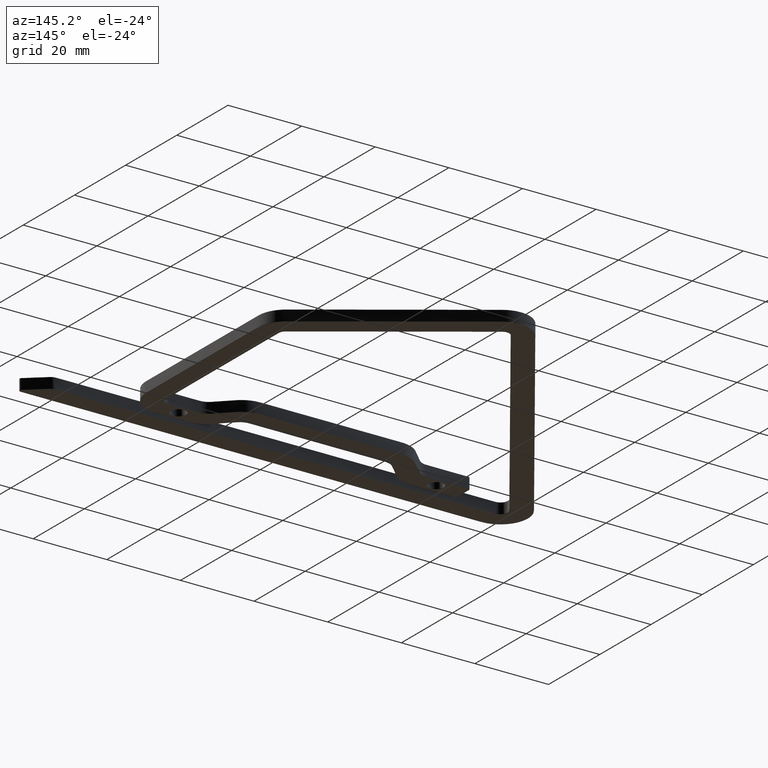
[diagram: clean part render]
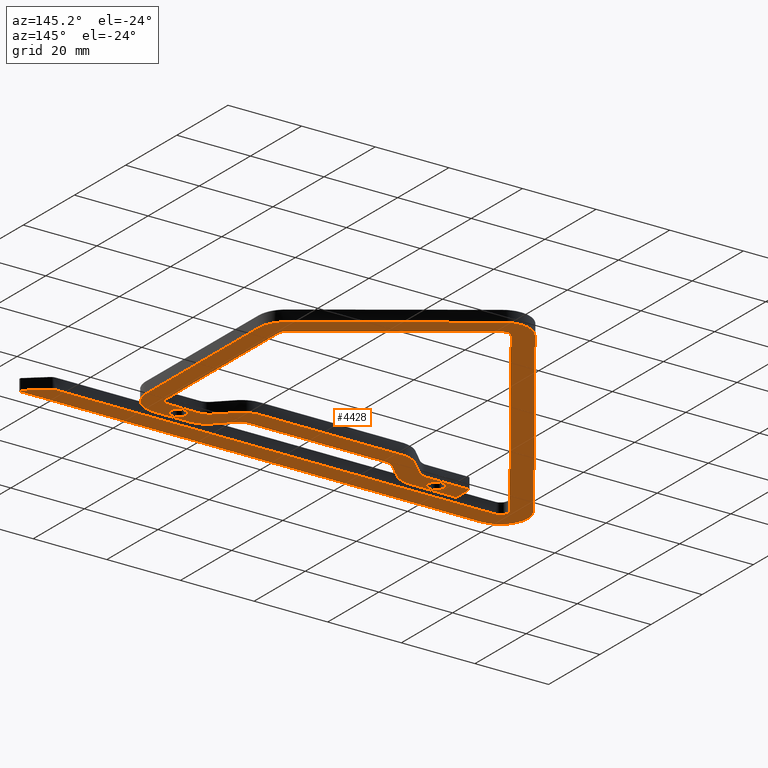
[diagram: same view with one face highlighted and labeled with its STEP entity id]
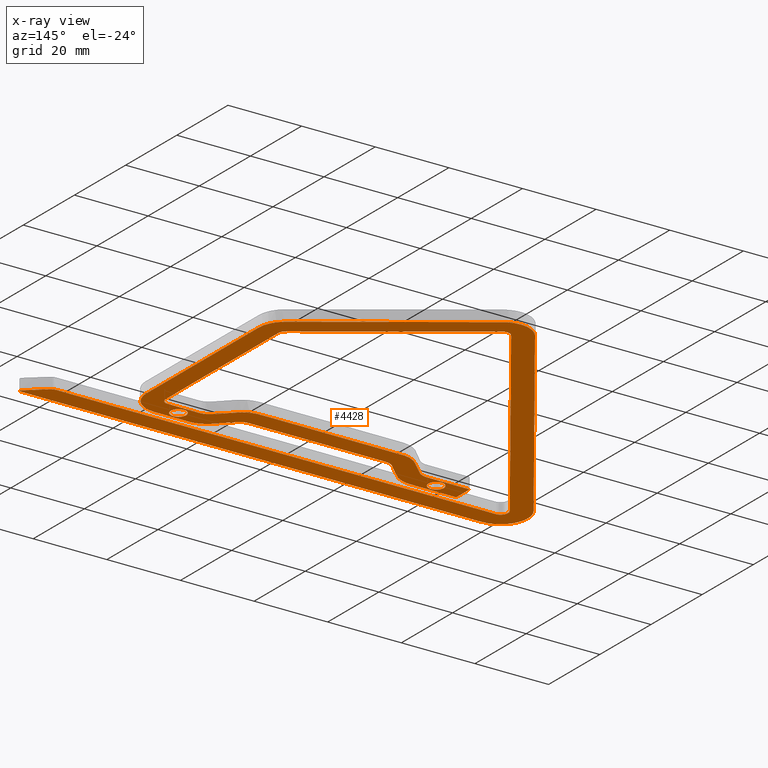
[diagram: x-ray of the same camera — body ghosted, the highlighted face saturated]
A machine part, auxiliary view. The second image highlights one B-rep face of the part: STEP entity #4428.
The next image is the same camera in x-ray: the body ghosted, the highlighted face saturated — about 0% of this face is hidden behind the body in this view.
In plain terms, the highlighted planar face has unit normal (0, 0, 1).
Its self-contained STEP definition (entity closure, byte-faithful):
#16 = CARTESIAN_POINT ( 'NONE',  ( 95.00074990902054139, 13.40539932508039378, 3.930232875259953573E-16 ) ) ;
#22 = CARTESIAN_POINT ( 'NONE',  ( 85.95969653664919008, 7.958709131113908875, -2.574980159653073031E-16 ) ) ;
#32 = CARTESIAN_POINT ( 'NONE',  ( -6.063354769611867034, 11.75564195275817880, 0.0000000000000000000 ) ) ;
#55 = CARTESIAN_POINT ( 'NONE',  ( 101.6076473150446873, 14.86363902360570854, -2.574980159653073524E-16 ) ) ;
#65 = CARTESIAN_POINT ( 'NONE',  ( 125.4380259098915644, 0.1624704921019760884, 0.0000000000000000000 ) ) ;
#90 = CARTESIAN_POINT ( 'NONE',  ( 28.35055293579714331, 8.859059731146770034, 3.930232875259768684E-16 ) ) ;
#93 = VERTEX_POINT ( 'NONE', #1504 ) ;
#100 = CARTESIAN_POINT ( 'NONE',  ( 68.00936434124947993, 0.09999999999999241440, -2.574980159653073031E-16 ) ) ;
#125 = CARTESIAN_POINT ( 'NONE',  ( 25.43508794953429941, 7.983562584107352755, 3.930232875259954066E-16 ) ) ;
#140 = CARTESIAN_POINT ( 'NONE',  ( 95.67989733999651492, 60.85325608174084522, 0.0000000000000000000 ) ) ;
#161 = CARTESIAN_POINT ( 'NONE',  ( 12.76902284240437879, 7.958709131113908875, -2.574980159653073031E-16 ) ) ;
#178 = CARTESIAN_POINT ( 'NONE',  ( 18.82520090008712899, 38.47703847828639567, -2.574980159653073031E-16 ) ) ;
#199 = CARTESIAN_POINT ( 'NONE',  ( 30.90102864770174307, 11.02536208489057223, -2.574980159653073524E-16 ) ) ;
#215 = CARTESIAN_POINT ( 'NONE',  ( 8.744408440400031068, 23.86892611015000298, 0.0000000000000000000 ) ) ;
#234 = CARTESIAN_POINT ( 'NONE',  ( 35.13351504746871967, 20.23810059304299003, 3.930232875259708533E-16 ) ) ;
#250 = CARTESIAN_POINT ( 'NONE',  ( 96.31894280066998704, 54.31698438359995862, 0.0000000000000000000 ) ) ;
#269 = CARTESIAN_POINT ( 'NONE',  ( 81.43230449974626595, 16.02308790014112816, -2.574980159653073031E-16 ) ) ;
#277 = CARTESIAN_POINT ( 'NONE',  ( 51.85622490145427577, 93.52159389696979019, 1.694065894508600678E-15 ) ) ;
#285 = CARTESIAN_POINT ( 'NONE',  ( 96.26373713197229165, 59.80395048720102125, 0.0000000000000000000 ) ) ;
#303 = CARTESIAN_POINT ( 'NONE',  ( 27.12646050321251678, 14.74612582097877400, -2.574980159653073524E-16 ) ) ;
#311 = CARTESIAN_POINT ( 'NONE',  ( 100.0960342916543340, 63.83176419812932068, -2.574980159653073524E-16 ) ) ;
#316 = DIRECTION ( 'NONE',  ( 1.000000000000000000, 0.0000000000000000000, 0.0000000000000000000 ) ) ;
#318 = CARTESIAN_POINT ( 'NONE',  ( 119.9369719253138555, 5.298681366648507307, 0.0000000000000000000 ) ) ;
#337 = CARTESIAN_POINT ( 'NONE',  ( 26.27369088365472294, 13.97515824161824227, -9.080193194566097663E-16 ) ) ;
#345 = CARTESIAN_POINT ( 'NONE',  ( 99.51910433138453982, 64.49793700245643890, -2.574980159653073524E-16 ) ) ;
#351 = CARTESIAN_POINT ( 'NONE',  ( 62.81262853378009936, 5.400000000000003020, 0.0000000000000000000 ) ) ;
#368 = CARTESIAN_POINT ( 'NONE',  ( 76.46153063577636999, 19.90581184866062259, 1.043544591017285593E-15 ) ) ;
#377 = CARTESIAN_POINT ( 'NONE',  ( 101.6189428006700410, 34.26271139634024365, -1.233279971202264844E-15 ) ) ;
#384 = CARTESIAN_POINT ( 'NONE',  ( 125.5846480992477723, 0.6774487149551823295, 0.0000000000000000000 ) ) ;
#401 = CARTESIAN_POINT ( 'NONE',  ( 94.50214939931618119, 13.27387001327016769, 3.930232875259953573E-16 ) ) ;
#404 = AXIS2_PLACEMENT_3D ( 'NONE', #2338, #1781, #2745 ) ;
#409 = CARTESIAN_POINT ( 'NONE',  ( 58.84804498173716070, 92.72701656688678895, -3.510104533421812716E-15 ) ) ;
#417 = CARTESIAN_POINT ( 'NONE',  ( 96.70115231096082198, 5.400000000000011902, 0.0000000000000000000 ) ) ;
#433 = CARTESIAN_POINT ( 'NONE',  ( 86.27100847919577120, 13.25870913111391758, -2.209061926439178602E-15 ) ) ;
#442 = CARTESIAN_POINT ( 'NONE',  ( 82.76253111590919787, 8.320861230285769850, -2.574980159653073031E-16 ) ) ;
#449 = CARTESIAN_POINT ( 'NONE',  ( 103.7653625491519591, 5.400000000000012790, -2.574980159653073031E-16 ) ) ;
#463 = CARTESIAN_POINT ( 'NONE',  ( 94.62885826209738127, 13.29509494790437074, -1.558540622947912624E-15 ) ) ;
#471 = CARTESIAN_POINT ( 'NONE',  ( 49.65900654165690753, 14.95870913111393463, -2.574980159653073031E-16 ) ) ;
#481 = CARTESIAN_POINT ( 'NONE',  ( -7.446173003871770391, 7.521967075119296631, 0.0000000000000000000 ) ) ;
#497 = CARTESIAN_POINT ( 'NONE',  ( 94.87756678125434462, 13.36052279474285953, -1.558540622947912624E-15 ) ) ;
#500 = CARTESIAN_POINT ( 'NONE',  ( 19.59149656747054991, 10.60815591360093713, 0.0000000000000000000 ) ) ;
#504 = CARTESIAN_POINT ( 'NONE',  ( 74.90700272177512886, 14.64232384426514422, 3.930232875259953573E-16 ) ) ;
#515 = CARTESIAN_POINT ( 'NONE',  ( 125.5099542305521965, 0.2173726268647785953, 0.0000000000000000000 ) ) ;
#531 = CARTESIAN_POINT ( 'NONE',  ( 95.55337159752247089, 13.73208470718327057, -2.574980159653071552E-16 ) ) ;
#537 = CARTESIAN_POINT ( 'NONE',  ( 85.12237443254484504, 7.957603843179334113, -1.558540622947912821E-15 ) ) ;
#540 = VERTEX_POINT ( 'NONE', #6328 ) ;
#547 = CARTESIAN_POINT ( 'NONE',  ( 0.3876037375008025698, 0.008750014722747783899, 0.0000000000000000000 ) ) ;
#568 = CARTESIAN_POINT ( 'NONE',  ( 96.66473740627033351, 8.358094463338517244, -2.209061926439215284E-15 ) ) ;
#578 = CARTESIAN_POINT ( 'NONE',  ( 104.4714377508334167, 0.09999999999999724387, 0.0000000000000000000 ) ) ;
#602 = CARTESIAN_POINT ( 'NONE',  ( 12.31894280067009007, 12.78600103903690055, -2.574980159653073031E-16 ) ) ;
#613 = CARTESIAN_POINT ( 'NONE',  ( 22.52921452333600527, 0.09999999999998643307, -2.574980159653073031E-16 ) ) ;
#636 = CARTESIAN_POINT ( 'NONE',  ( 12.59177748932203578, 13.23970047465060773, 3.930232875259953573E-16 ) ) ;
#644 = EDGE_LOOP ( 'NONE', ( #6285, #1571 ) ) ;
#653 = CARTESIAN_POINT ( 'NONE',  ( 87.29833535978714565, 66.65287794888635631, -2.574980159653073031E-16 ) ) ;
#673 = CARTESIAN_POINT ( 'NONE',  ( 21.96692240409734964, 7.958709131113935520, -1.639855785884313032E-15 ) ) ;
#690 = CARTESIAN_POINT ( 'NONE',  ( 55.12120506385689822, 88.70449195939545461, 0.0000000000000000000 ) ) ;
#711 = CARTESIAN_POINT ( 'NONE',  ( 37.29758939479449253, 14.95870913111394351, -2.574980159653073031E-16 ) ) ;
#728 = CARTESIAN_POINT ( 'NONE',  ( 54.17464361329611933, 88.71688176178992080, 0.0000000000000000000 ) ) ;
#747 = CARTESIAN_POINT ( 'NONE',  ( 13.35907677655055892, 7.958709131113908875, -2.574980159653073031E-16 ) ) ;
#762 = CARTESIAN_POINT ( 'NONE',  ( 56.98067605355699783, 87.57454281752796987, -2.574980159653073031E-16 ) ) ;
#782 = CARTESIAN_POINT ( 'NONE',  ( 79.37845833418261066, 18.07879229294933765, 3.930232875259830807E-16 ) ) ;
#790 = CARTESIAN_POINT ( 'NONE',  ( 48.87141383205321432, 91.31876332882582403, -2.574980159653073524E-16 ) ) ;
#798 = CARTESIAN_POINT ( 'NONE',  ( 95.84893371919112326, 60.67142677852054788, 0.0000000000000000000 ) ) ;
#815 = CARTESIAN_POINT ( 'NONE',  ( 28.54998125280894783, 16.16964657057520327, -2.574980159653073031E-16 ) ) ;
#823 = CARTESIAN_POINT ( 'NONE',  ( 37.04541830318272844, 74.21148478875619503, -2.574980159653073031E-16 ) ) ;
#831 = CARTESIAN_POINT ( 'NONE',  ( -0.6951117410210431169, 5.518379534952601695, 0.0000000000000000000 ) ) ;
#848 = CARTESIAN_POINT ( 'NONE',  ( 17.49548139747495412, 13.25870913111395133, -2.574980159653072538E-16 ) ) ;
#856 = CARTESIAN_POINT ( 'NONE',  ( 55.24254104801205045, 94.04758728878891816, -1.558540622947909074E-15 ) ) ;
#863 = CARTESIAN_POINT ( 'NONE',  ( 123.8775894574874883, 2.151413378059698456, -2.209061926439215284E-15 ) ) ;
#874 = CARTESIAN_POINT ( 'NONE',  ( 22.64027386468194791, -1.354706778582924256E-14, 0.0000000000000000000 ) ) ;
#881 = CARTESIAN_POINT ( 'NONE',  ( 12.87887827769245241, 13.25870913111396199, -2.574980159653010908E-16 ) ) ;
#889 = CARTESIAN_POINT ( 'NONE',  ( 49.66624368050674576, 92.15541186377181759, -1.558540622947913807E-15 ) ) ;
#896 = CARTESIAN_POINT ( 'NONE',  ( 125.2514044820286756, 0.9986456976613851122, -2.209061926439215284E-15 ) ) ;
#913 = CARTESIAN_POINT ( 'NONE',  ( 34.69950090923922659, 20.19594568076676566, 3.930232875259830314E-16 ) ) ;
#921 = CARTESIAN_POINT ( 'NONE',  ( -5.672224920453865060, 12.30919537963432830, 1.694065894508600678E-15 ) ) ;
#929 = CARTESIAN_POINT ( 'NONE',  ( 125.6233657786639810, 0.5030950361410790883, 0.0000000000000000000 ) ) ;
#954 = CARTESIAN_POINT ( 'NONE',  ( 88.61112336775090625, 7.958709131113910651, -2.574980159653073524E-16 ) ) ;
#961 = CARTESIAN_POINT ( 'NONE',  ( 120.0410491060946043, 5.255611512474913205, 0.0000000000000000000 ) ) ;
#983 = CARTESIAN_POINT ( 'NONE',  ( 98.63767437269646621, 9.396594625788567967, -2.574980159653166215E-16 ) ) ;
#992 = CARTESIAN_POINT ( 'NONE',  ( 125.3142017799470409, 0.1104476978482812483, 0.0000000000000000000 ) ) ;
#1008 = CARTESIAN_POINT ( 'NONE',  ( 95.34446831634608088, 13.58112663121160857, -2.574980159653073031E-16 ) ) ;
#1015 = CARTESIAN_POINT ( 'NONE',  ( 101.6189428006700268, 15.70800137909276017, -2.574980159653073031E-16 ) ) ;
#1040 = CARTESIAN_POINT ( 'NONE',  ( 88.30099547376563862, 13.25870913111391580, -2.574980159653073031E-16 ) ) ;
#1047 = CARTESIAN_POINT ( 'NONE',  ( 101.4003675328086018, 13.48817596394932394, 3.930232875259954066E-16 ) ) ;
#1058 = CARTESIAN_POINT ( 'NONE',  ( -4.659438906768452071, 1.691764120658400872, 0.0000000000000000000 ) ) ;
#1073 = CARTESIAN_POINT ( 'NONE',  ( 96.11082525309409164, 14.43822814518989972, -9.080193194566099635E-16 ) ) ;
#1079 = CARTESIAN_POINT ( 'NONE',  ( 80.08592945483079006, 9.884005531045369608, 3.930232875259953573E-16 ) ) ;
#1089 = CARTESIAN_POINT ( 'NONE',  ( 27.30785520105899522, 0.09999999999998705758, -2.574980159653073031E-16 ) ) ;
#1112 = CARTESIAN_POINT ( 'NONE',  ( 24.60481058028105039, 7.958709131113945290, -2.574980159653135154E-16 ) ) ;
#1147 = CARTESIAN_POINT ( 'NONE',  ( 34.56042180120307705, 14.46413576555022829, -2.574980159652950264E-16 ) ) ;
#1182 = CARTESIAN_POINT ( 'NONE',  ( 29.70779894141396582, 9.846019196607871393, 1.043544591017298412E-15 ) ) ;
#1198 = CARTESIAN_POINT ( 'NONE',  ( 22.04809685508927330, 43.14734852085074124, -2.574980159653073031E-16 ) ) ;
#1217 = CARTESIAN_POINT ( 'NONE',  ( 27.85434417363530812, 8.609226771733629491, -1.558540622947893691E-15 ) ) ;
#1233 = CARTESIAN_POINT ( 'NONE',  ( 53.27221240582375117, 88.26105564253968794, 0.0000000000000000000 ) ) ;
#1253 = CARTESIAN_POINT ( 'NONE',  ( 12.66489617696868031, 7.960856801624743184, -2.574980159653073031E-16 ) ) ;
#1257 = VERTEX_POINT ( 'NONE', #4099 ) ;
#1269 = CARTESIAN_POINT ( 'NONE',  ( 62.06502630464603953, 84.06592525066260180, -2.574980159653073031E-16 ) ) ;
#1290 = CARTESIAN_POINT ( 'NONE',  ( 78.03958423737208250, 19.16949377098964646, 3.930232875259830314E-16 ) ) ;
#1298 = CARTESIAN_POINT ( 'NONE',  ( 4.683567376185317599, 27.31581099396691314, -2.574980159653072045E-16 ) ) ;
#1305 = CARTESIAN_POINT ( 'NONE',  ( 78.08220317286613010, 73.01276302617000624, -2.574980159653073031E-16 ) ) ;
#1324 = CARTESIAN_POINT ( 'NONE',  ( 34.40913665556958279, 20.15037033816494372, -2.574980159652950264E-16 ) ) ;
#1332 = CARTESIAN_POINT ( 'NONE',  ( 101.6189428006700410, 59.00232475267058163, -2.574980159653074017E-16 ) ) ;
#1341 = CARTESIAN_POINT ( 'NONE',  ( 95.48781468888206803, 60.99891251900801592, 0.0000000000000000000 ) ) ;
#1361 = CARTESIAN_POINT ( 'NONE',  ( 24.27510140041367848, 13.26987533854862100, 1.694065894508625330E-15 ) ) ;
#1370 = CARTESIAN_POINT ( 'NONE',  ( 59.79785756034614508, 92.06993072085550978, -2.574980159653073031E-16 ) ) ;
#1377 = CARTESIAN_POINT ( 'NONE',  ( -0.5838617101160767930, 10.35129650870678475, -2.574980159653073031E-16 ) ) ;
#1396 = CARTESIAN_POINT ( 'NONE',  ( 75.34396098505574457, 20.18133755629279591, 1.043544591017297821E-15 ) ) ;
#1404 = CARTESIAN_POINT ( 'NONE',  ( 58.96623541980809335, 92.64381802349781481, -2.574980159653147480E-16 ) ) ;
#1409 = DIRECTION ( 'NONE',  ( 1.000000000000000000, 0.0000000000000000000, 0.0000000000000000000 ) ) ;
#1411 = CARTESIAN_POINT ( 'NONE',  ( -1.905285228066380787, 6.586144441013926709, 0.0000000000000000000 ) ) ;
#1427 = CARTESIAN_POINT ( 'NONE',  ( 74.76013472872804755, 20.25477509803363318, 1.043544591017298018E-15 ) ) ;
#1435 = CARTESIAN_POINT ( 'NONE',  ( 54.38179316775289607, 94.05314025101145603, -1.558540622947912427E-15 ) ) ;
#1439 = EDGE_CURVE ( 'NONE', #4730, #3604, #4748, .T. ) ;
#1443 = CARTESIAN_POINT ( 'NONE',  ( -1.495390700495514702, 6.006999519139657906, 0.0000000000000000000 ) ) ;
#1450 = CARTESIAN_POINT ( 'NONE',  ( 21.69149656747055133, 10.60815591360093713, 2.032879073410320814E-17 ) ) ;
#1468 = CARTESIAN_POINT ( 'NONE',  ( 75.16513764511202567, 14.52235689908165739, 3.930232875259954066E-16 ) ) ;
#1475 = CARTESIAN_POINT ( 'NONE',  ( -0.2350399603851553998, 5.399999999999986144, 0.0000000000000000000 ) ) ;
#1491 = CARTESIAN_POINT ( 'NONE',  ( 96.31894280067000125, 30.66612566047543353, -3.218725199566281138E-16 ) ) ;
#1500 = CARTESIAN_POINT ( 'NONE',  ( 80.19140489173493336, 9.789865085969310599, -2.574980159653073031E-16 ) ) ;
#1504 = CARTESIAN_POINT ( 'NONE',  ( 87.49149656747037795, 10.60815591354274190, 2.032879073410320814E-17 ) ) ;
#1508 = CARTESIAN_POINT ( 'NONE',  ( 31.40631426689008521, 5.400000000000231282, 0.0000000000000000000 ) ) ;
#1523 = CARTESIAN_POINT ( 'NONE',  ( 95.90911298848617150, 14.10569744281159466, -2.574980159653073031E-16 ) ) ;
#1531 = CARTESIAN_POINT ( 'NONE',  ( 79.88057524368814200, 10.07812346124171476, 3.930232875259952094E-16 ) ) ;
#1540 = CARTESIAN_POINT ( 'NONE',  ( -6.689393976051375645, 10.77077715369690836, 0.0000000000000000000 ) ) ;
#1562 = CARTESIAN_POINT ( 'NONE',  ( 83.86847099412156581, 8.034077799556925470, 3.930232875259954559E-16 ) ) ;
#1566 = ORIENTED_EDGE ( 'NONE', *, *, #5269, .T. ) ;
#1571 = ORIENTED_EDGE ( 'NONE', *, *, #1818, .T. ) ;
#1574 = CARTESIAN_POINT ( 'NONE',  ( -5.864631706591426408, 12.03037801844676125, -2.574980159653073031E-16 ) ) ;
#1588 = CARTESIAN_POINT ( 'NONE',  ( 96.31894280067004388, 40.90402024666484948, 8.947549533298889017E-31 ) ) ;
#1594 = CARTESIAN_POINT ( 'NONE',  ( 74.10056878265935154, 14.89033137710964283, 3.930232875259953573E-16 ) ) ;
#1628 = CARTESIAN_POINT ( 'NONE',  ( 12.37742209286663986, 8.139191054333226205, -2.209061926439184519E-15 ) ) ;
#1638 = CARTESIAN_POINT ( 'NONE',  ( -3.965658385072283298, 1.197656901684535757, 0.0000000000000000000 ) ) ;
#1662 = CARTESIAN_POINT ( 'NONE',  ( 34.81652841671437670, 14.59281859501250622, -1.558540622947925048E-15 ) ) ;
#1701 = CARTESIAN_POINT ( 'NONE',  ( 25.98270389014036752, 8.053670010915555011, 3.930232875260077326E-16 ) ) ;
#1715 = CARTESIAN_POINT ( 'NONE',  ( 54.41343562736979322, 88.75433961771919655, 0.0000000000000000000 ) ) ;
#1734 = CARTESIAN_POINT ( 'NONE',  ( 36.03333307392560414, 14.93067095508441966, 3.930232875260016189E-16 ) ) ;
#1751 = CARTESIAN_POINT ( 'NONE',  ( 16.16187338340243684, 34.61760105881121063, -2.574980159653073031E-16 ) ) ;
#1772 = CARTESIAN_POINT ( 'NONE',  ( 25.15959250279784953, 7.963815581859927661, 3.930232875259953573E-16 ) ) ;
#1781 = DIRECTION ( 'NONE',  ( 0.0000000000000000000, 0.0000000000000000000, 1.000000000000000000 ) ) ;
#1786 = CARTESIAN_POINT ( 'NONE',  ( 19.59149656747054991, 10.60815591360093713, 0.0000000000000000000 ) ) ;
#1788 = CARTESIAN_POINT ( 'NONE',  ( 67.87782352517027107, 80.05461968881834878, 0.0000000000000000000 ) ) ;
#1807 = CARTESIAN_POINT ( 'NONE',  ( 38.18106310296013817, 20.25870913111393534, 7.182839392716591121E-16 ) ) ;
#1818 = EDGE_CURVE ( 'NONE', #93, #3182, #2779, .T. ) ;
#1825 = CARTESIAN_POINT ( 'NONE',  ( 75.16894415558306264, 75.02315004910946072, -2.574980159653073031E-16 ) ) ;
#1844 = CARTESIAN_POINT ( 'NONE',  ( 33.00452256711857757, 19.77316869444802450, 1.043544591017298215E-15 ) ) ;
#1852 = CARTESIAN_POINT ( 'NONE',  ( 101.3914983143087198, 61.23741582690591656, -9.080193194566070053E-16 ) ) ;
#1860 = CARTESIAN_POINT ( 'NONE',  ( 55.34195828851167676, 88.62379625453820609, 0.0000000000000000000 ) ) ;
#1877 = CARTESIAN_POINT ( 'NONE',  ( 79.17001382482679617, 18.28026471021793853, 3.930232875259830314E-16 ) ) ;
#1886 = CARTESIAN_POINT ( 'NONE',  ( 67.99527580279244887, 86.41304159481055081, -2.574980159653073031E-16 ) ) ;
#1893 = CARTESIAN_POINT ( 'NONE',  ( 0.07791767053678218258, 11.31028337349466817, -2.574980159653073031E-16 ) ) ;
#1905 = DIRECTION ( 'NONE',  ( 1.000000000000000000, 0.0000000000000000000, -0.0000000000000000000 ) ) ;
#1915 = CARTESIAN_POINT ( 'NONE',  ( 31.47096050191962391, 18.93525190823754301, 1.043544591017298018E-15 ) ) ;
#1923 = CARTESIAN_POINT ( 'NONE',  ( 58.48856368137708017, 92.96687882287605476, -3.510104533421809167E-15 ) ) ;
#1930 = CARTESIAN_POINT ( 'NONE',  ( 119.7185646778127079, 5.356544364391084834, -9.080193194566099635E-16 ) ) ;
#1938 = PLANE ( 'NONE',  #3662 ) ;
#1946 = CARTESIAN_POINT ( 'NONE',  ( 26.82313334506341462, 14.43934756280158105, -9.080193194566160772E-16 ) ) ;
#1954 = CARTESIAN_POINT ( 'NONE',  ( 52.67318534646057770, 93.79625796160073037, -9.080193194566072025E-16 ) ) ;
#1961 = CARTESIAN_POINT ( 'NONE',  ( -1.656107536145993153, 6.187539862815596869, 0.0000000000000000000 ) ) ;
#1985 = CARTESIAN_POINT ( 'NONE',  ( 100.7275536495240402, 62.85871239439604352, 1.043544591017298018E-15 ) ) ;
#1995 = CARTESIAN_POINT ( 'NONE',  ( 125.6018424450851541, 0.3705222923731494866, 0.0000000000000000000 ) ) ;
#2011 = CARTESIAN_POINT ( 'NONE',  ( 96.31894280067000125, 15.82117851050041502, -2.574980159653073031E-16 ) ) ;
#2020 = CARTESIAN_POINT ( 'NONE',  ( 71.29148654866638424, 14.95870913111391154, -2.574980159653072538E-16 ) ) ;
#2027 = CARTESIAN_POINT ( 'NONE',  ( 120.5721970643588747, 5.035808622586534611, 0.0000000000000000000 ) ) ;
#2041 = CARTESIAN_POINT ( 'NONE',  ( 96.31894280067002967, 49.09433591561645471, 0.0000000000000000000 ) ) ;
#2048 = CARTESIAN_POINT ( 'NONE',  ( 80.73286010569994176, 9.333845543201617190, -2.574980159653042462E-16 ) ) ;
#2057 = CARTESIAN_POINT ( 'NONE',  ( 85.48241664752987390, 0.09999999999999471811, 0.0000000000000000000 ) ) ;
#2075 = CARTESIAN_POINT ( 'NONE',  ( 84.28490846451003904, 13.58530373090830601, -9.080193194565977361E-16 ) ) ;
#2081 = CARTESIAN_POINT ( 'NONE',  ( 94.75079256290905505, 7.972547718881438428, 3.930232875259923991E-16 ) ) ;
#2091 = CARTESIAN_POINT ( 'NONE',  ( 125.5376500884050586, 0.2525471779534884109, 0.0000000000000000000 ) ) ;
#2114 = CARTESIAN_POINT ( 'NONE',  ( 76.18534431520596684, 13.77793160494641533, 1.043544591017310245E-15 ) ) ;
#2125 = CARTESIAN_POINT ( 'NONE',  ( 125.2044987650408387, 0.08487046588859939455, 0.0000000000000000000 ) ) ;
#2146 = CARTESIAN_POINT ( 'NONE',  ( 12.31894280066999414, 8.407805135088553428, -2.574980159653073524E-16 ) ) ;
#2158 = CARTESIAN_POINT ( 'NONE',  ( 53.12674998440281371, 0.09999999999999044376, -2.574980159653073031E-16 ) ) ;
#2183 = CARTESIAN_POINT ( 'NONE',  ( 12.33687324263646268, 12.99729598052914525, -2.209061926439196746E-15 ) ) ;
#2193 = CARTESIAN_POINT ( 'NONE',  ( 125.3578019502640188, 0.1206130672379251145, 0.0000000000000000000 ) ) ;
#2218 = CARTESIAN_POINT ( 'NONE',  ( 12.31894280067009539, 12.57751551980108573, -2.574980159653073524E-16 ) ) ;
#2236 = CARTESIAN_POINT ( 'NONE',  ( 32.26803751748948201, 57.95710104666187590, -2.574980159653073031E-16 ) ) ;
#2255 = CARTESIAN_POINT ( 'NONE',  ( 12.46309800352157637, 13.17455540994643570, -1.558540622947912821E-15 ) ) ;
#2272 = CARTESIAN_POINT ( 'NONE',  ( 59.20919628288101677, 86.03668156907320963, -2.574980159653073031E-16 ) ) ;
#2293 = CARTESIAN_POINT ( 'NONE',  ( 33.56946443895025567, 13.69579059303483781, -9.080193194566160772E-16 ) ) ;
#2310 = CARTESIAN_POINT ( 'NONE',  ( 6.653598530767005137, 20.83912600043915120, -2.574980159653073031E-16 ) ) ;
#2328 = CARTESIAN_POINT ( 'NONE',  ( 13.31168482017202415, 13.25870913111394600, -1.233279971202254983E-15 ) ) ;
#2338 = CARTESIAN_POINT ( 'NONE',  ( 89.59149656747038648, 10.60815591354274190, 0.0000000000000000000 ) ) ;
#2345 = CARTESIAN_POINT ( 'NONE',  ( 96.41992035206129685, 59.13631305973014207, 0.0000000000000000000 ) ) ;
#2364 = CARTESIAN_POINT ( 'NONE',  ( 55.01905704338642522, 20.25870913111394245, -2.574980159653072538E-16 ) ) ;
#2372 = CARTESIAN_POINT ( 'NONE',  ( 53.51560749530064243, 93.97415689586712517, -9.080193194566099635E-16 ) ) ;
#2378 = DIRECTION ( 'NONE',  ( 0.0000000000000000000, 0.0000000000000000000, 1.000000000000000000 ) ) ;
#2381 = CARTESIAN_POINT ( 'NONE',  ( 65.94022445166218915, 81.39172154276641891, 0.0000000000000000000 ) ) ;
#2400 = CARTESIAN_POINT ( 'NONE',  ( 27.63486077092550630, 15.25452608869176352, -2.574980159653073031E-16 ) ) ;
#2409 = CARTESIAN_POINT ( 'NONE',  ( 92.23112104132967204, 69.68832591780783048, -2.574980159653073031E-16 ) ) ;
#2416 = CARTESIAN_POINT ( 'NONE',  ( 125.4156129757937919, 0.8976794383827405577, 0.0000000000000000000 ) ) ;
#2436 = CARTESIAN_POINT ( 'NONE',  ( 23.26623529720314920, 13.25870913111394778, -2.574980159653072538E-16 ) ) ;
#2444 = CARTESIAN_POINT ( 'NONE',  ( 100.5841092303072344, 63.11093794244001742, -2.574980159653072538E-16 ) ) ;
#2449 = CARTESIAN_POINT ( 'NONE',  ( 109.6758809261532122, 5.400000000000013678, -2.574980159653073031E-16 ) ) ;
#2467 = CARTESIAN_POINT ( 'NONE',  ( 79.06322517256529636, 18.37756382007802713, -2.574980159652949771E-16 ) ) ;
#2475 = CARTESIAN_POINT ( 'NONE',  ( 97.10205072162381157, 66.32698600233187847, -2.574980159653073524E-16 ) ) ;
#2482 = CARTESIAN_POINT ( 'NONE',  ( 125.5997934965513423, 0.6353188380622329934, 0.0000000000000000000 ) ) ;
#2499 = CARTESIAN_POINT ( 'NONE',  ( 96.31233571490196255, 15.05334356939249751, -9.080193194566097663E-16 ) ) ;
#2514 = CARTESIAN_POINT ( 'NONE',  ( 122.6472995937979391, 3.183749148922752958, 0.0000000000000000000 ) ) ;
#2531 = CARTESIAN_POINT ( 'NONE',  ( 96.31894280067000125, 16.20509955748243414, -2.574980159653073031E-16 ) ) ;
#2539 = CARTESIAN_POINT ( 'NONE',  ( 75.65027942305928832, 14.23215615885984420, 3.930232875259891944E-16 ) ) ;
#2546 = CARTESIAN_POINT ( 'NONE',  ( -2.100373299208282418, 7.268319644875691488, 0.0000000000000000000 ) ) ;
#2561 = CARTESIAN_POINT ( 'NONE',  ( 90.33098246833533551, 13.25870913111391580, -2.574980159653073031E-16 ) ) ;
#2569 = CARTESIAN_POINT ( 'NONE',  ( 74.37708712792995414, 14.82543428746983594, 3.930232875259955052E-16 ) ) ;
#2577 = CARTESIAN_POINT ( 'NONE',  ( 6.225304682081026719, 0.09999999999998432365, -2.574980159653073031E-16 ) ) ;
#2592 = CARTESIAN_POINT ( 'NONE',  ( 96.05004430791939285, 14.32247516865475667, -2.574980159653073031E-16 ) ) ;
#2600 = CARTESIAN_POINT ( 'NONE',  ( 101.6189428006699984, 15.14573743917616788, -2.574980159653073524E-16 ) ) ;
#2610 = CARTESIAN_POINT ( 'NONE',  ( -3.219940273236431949, 0.8372689806063881024, 0.0000000000000000000 ) ) ;
#2626 = CARTESIAN_POINT ( 'NONE',  ( 85.40323334751541040, 13.27808710085372645, 3.930232875259830314E-16 ) ) ;
#2632 = CARTESIAN_POINT ( 'NONE',  ( 96.13046734277854455, 8.204402420497189041, -9.080193194566133161E-16 ) ) ;
#2642 = CARTESIAN_POINT ( 'NONE',  ( 114.7239327009967980, 0.09999999999999860389, 0.0000000000000000000 ) ) ;
#2664 = CARTESIAN_POINT ( 'NONE',  ( 84.42484075879383454, 7.965501839047257171, -1.558540622947912427E-15 ) ) ;
#2675 = CARTESIAN_POINT ( 'NONE',  ( 76.74589049438966981, 0.09999999999999356626, -2.574980159653073031E-16 ) ) ;
#2698 = CARTESIAN_POINT ( 'NONE',  ( 35.34097479071525783, 14.79171794572016907, -1.558540622947931359E-15 ) ) ;
#2711 = CARTESIAN_POINT ( 'NONE',  ( -5.243829571676500656, 2.278673403893369809, 0.0000000000000000000 ) ) ;
#2735 = CARTESIAN_POINT ( 'NONE',  ( 27.06612692858404756, 8.318643853335435878, -1.558540622947919132E-15 ) ) ;
#2745 = DIRECTION ( 'NONE',  ( 1.000000000000000000, 0.0000000000000000000, 0.0000000000000000000 ) ) ;
#2752 = CARTESIAN_POINT ( 'NONE',  ( 53.95185388403750437, 88.64199171228578678, 0.0000000000000000000 ) ) ;
#2770 = CARTESIAN_POINT ( 'NONE',  ( 31.88967363946488476, 12.01400707665368017, -2.574980159653073031E-16 ) ) ;
#2779 = CIRCLE ( 'NONE', #5964, 2.100000000000004530 ) ;
#2788 = CARTESIAN_POINT ( 'NONE',  ( 53.07565370390720716, 88.09635132674254976, 0.0000000000000000000 ) ) ;
#2808 = CARTESIAN_POINT ( 'NONE',  ( 33.47150562628590365, 13.59583906347467419, -2.574980159653012387E-16 ) ) ;
#2824 = DIRECTION ( 'NONE',  ( 0.0000000000000000000, 0.0000000000000000000, 1.000000000000000000 ) ) ;
#2826 = CARTESIAN_POINT ( 'NONE',  ( 48.45549639639511952, 81.41440553966404536, 0.0000000000000000000 ) ) ;
#2845 = CARTESIAN_POINT ( 'NONE',  ( 12.53195741339707681, 7.998454265791739459, 1.043544591017298215E-15 ) ) ;
#2860 = CARTESIAN_POINT ( 'NONE',  ( 95.03232918155264031, 61.34430756556485420, 0.0000000000000000000 ) ) ;
#2879 = CARTESIAN_POINT ( 'NONE',  ( 79.48034984451581408, 17.97493458880660810, -2.574980159652949771E-16 ) ) ;
#2895 = CARTESIAN_POINT ( 'NONE',  ( 53.47127239889800165, 88.42785588919475970, 0.0000000000000000000 ) ) ;
#2915 = CARTESIAN_POINT ( 'NONE',  ( 33.55180102688031951, 19.96288916518352607, -2.574980159653072538E-16 ) ) ;
#2923 = CARTESIAN_POINT ( 'NONE',  ( 53.23198070919496416, 93.92557216304412293, -9.080193194566103579E-16 ) ) ;
#2931 = CARTESIAN_POINT ( 'NONE',  ( 105.8651537667616651, 5.400000000000012790, -2.574980159653073031E-16 ) ) ;
#2950 = CARTESIAN_POINT ( 'NONE',  ( 26.50553646944503328, 14.14704806999240816, -9.080193194566099635E-16 ) ) ;
#2958 = CARTESIAN_POINT ( 'NONE',  ( 55.80987453035129420, 93.97807518652209069, 1.694065894508596734E-15 ) ) ;
#2964 = CARTESIAN_POINT ( 'NONE',  ( -2.058660213791025928, 7.976615051306068516, 0.0000000000000000000 ) ) ;
#2982 = CARTESIAN_POINT ( 'NONE',  ( 20.66939604232550565, 13.25870913111395488, -2.574980159653074017E-16 ) ) ;
#2990 = CARTESIAN_POINT ( 'NONE',  ( 98.17127918802992781, 65.58913089893459869, -2.574980159653073031E-16 ) ) ;
#2997 = CARTESIAN_POINT ( 'NONE',  ( 7.185473259516888122E-14, 5.399999999999987921, 0.0000000000000000000 ) ) ;
#3013 = CARTESIAN_POINT ( 'NONE',  ( 35.56826498409787263, 20.25888213129075055, -9.080193194565977361E-16 ) ) ;
#3020 = CARTESIAN_POINT ( 'NONE',  ( 48.61487702207050887, 90.97662096948022281, -2.574980159653072538E-16 ) ) ;
#3028 = CARTESIAN_POINT ( 'NONE',  ( 125.6237121868411180, 0.4583268600795608050, 0.0000000000000000000 ) ) ;
#3045 = CARTESIAN_POINT ( 'NONE',  ( 84.15279498992637741, 13.64448416538877851, -2.574980159653195797E-16 ) ) ;
#3053 = CARTESIAN_POINT ( 'NONE',  ( 73.25808609136538507, 14.96086972933550641, -2.574980159652893565E-16 ) ) ;
#3058 = EDGE_LOOP ( 'NONE', ( #5222, #3258 ) ) ;
#3061 = CARTESIAN_POINT ( 'NONE',  ( 114.4096625046045261, 5.400000000000013678, -2.574980159653073031E-16 ) ) ;
#3075 = CARTESIAN_POINT ( 'NONE',  ( 92.36096946290557241, 13.25870913111391758, -2.574980159653073524E-16 ) ) ;
#3083 = CARTESIAN_POINT ( 'NONE',  ( 97.92889891420078641, 8.949791503640899037, -2.574980159653103599E-16 ) ) ;
#3085 = ORIENTED_EDGE ( 'NONE', *, *, #6195, .T. ) ;
#3091 = CARTESIAN_POINT ( 'NONE',  ( -2.474222161400570386, 0.4768810595282358955, 0.0000000000000000000 ) ) ;
#3107 = CARTESIAN_POINT ( 'NONE',  ( 85.11831408431872603, 13.32243378783287469, -2.574980159652950264E-16 ) ) ;
#3115 = CARTESIAN_POINT ( 'NONE',  ( 101.0221649231571917, 12.43395508819518192, 1.043544591017297821E-15 ) ) ;
#3125 = CARTESIAN_POINT ( 'NONE',  ( -7.033694467898751412, 5.056003869023406594, 0.0000000000000000000 ) ) ;
#3141 = CARTESIAN_POINT ( 'NONE',  ( 95.65215760290976732, 13.81843253353676104, -9.080193194566099635E-16 ) ) ;
#3147 = CARTESIAN_POINT ( 'NONE',  ( 97.17835811397658574, 8.570497492771279369, -9.080193194566129217E-16 ) ) ;
#3157 = CARTESIAN_POINT ( 'NONE',  ( -7.266782050128052006, 5.875237373671232888, 0.0000000000000000000 ) ) ;
#3179 = CARTESIAN_POINT ( 'NONE',  ( 85.26195263372781596, 7.958709131113907098, -2.574980159653072538E-16 ) ) ;
#3182 = VERTEX_POINT ( 'NONE', #4835 ) ;
#3189 = CARTESIAN_POINT ( 'NONE',  ( 125.4002483279081304, 0.1384462567138442790, 0.0000000000000000000 ) ) ;
#3212 = CARTESIAN_POINT ( 'NONE',  ( 12.34435767921626415, 8.202367877264858720, 1.043544591017267055E-15 ) ) ;
#3214 = B_SPLINE_CURVE_WITH_KNOTS ( 'NONE', 3,
 ( #921, #1298, #4049, #823, #5631, #4018, #3539, #4496, #3401, #5502, #3020, #790, #3475, #5601, #889, #5568, #6670, #4983, #277, #6640, #1954, #2923, #2372, #6152, #1435, #856, #2958, #4462, #5116, #6605, #6121, #1923, #409, #1404, #6087, #1370, #1886, #5018, #2409, #2475, #2990, #6568, #4596, #5052, #3509, #345, #6702, #311, #3983, #2444, #1985, #6015, #4529, #1852, #5085, #3949, #6049, #1332, #3436, #5535, #377, #5793, #1015, #2600, #55, #5696, #1047, #6800, #3115, #3697, #4113, #4691, #6278, #6767, #4723, #983, #3083, #6217, #3147, #568, #2632, #5248, #4143, #2081, #5727, #4081, #4175, #954, #22, #5180, #3179, #537, #2664, #1562, #6247, #442, #6736, #4659, #4208, #2048, #1500, #1079, #1531, #3665, #5760, #6313, #3632, #5280, #5215, #4757, #2114, #6183, #2539, #1468, #504, #2569, #1594, #3572, #5665, #3053, #5150, #4627, #2020, #3602, #471, #4274, #711, #4343, #4864, #6419, #1734, #3871, #2698, #1662, #1147, #5969, #3727, #2293, #2808, #3359, #4901, #2770, #199, #6453, #3249, #1182, #5899, #3286, #5458, #90, #1217, #2735, #6490, #4827, #1701, #125, #1772, #5864, #1112, #4381, #673, #5421, #3832, #747, #6346, #161, #5932, #1253, #5386, #2845, #4938, #1628, #3212, #3798, #2146, #5825, #3320, #4240, #5348, #5312, #2218, #602, #4791, #2183, #6381, #2255, #3762, #636, #4309, #6595, #881, #2328, #4417, #848, #2982, #2436, #6041, #6076, #3974, #1361, #3531, #5494, #6661, #5525, #337, #2950, #1946, #5044, #303, #2400, #815, #3941, #3428, #3501, #6630, #5623, #6526, #5559, #1915, #4041, #3465, #1844, #2915, #1324, #913, #234, #4521, #3013, #5010, #6144, #1807, #5593, #2364, #5077, #4010, #3393, #6007, #6113, #1427, #1396, #368, #3907, #1290, #4487, #2467, #1877, #782, #2879, #4973, #4554, #269, #4454, #6560, #6728, #4073, #6759, #5141, #3045, #2075, #5172, #3624, #3107, #2626, #4717, #5109, #433, #4620, #1040, #2561, #3075, #5719, #6793, #4105, #4684, #5208, #401, #463, #497, #16, #4651, #1008, #531, #3141, #6208, #1523, #2592, #1073, #4168, #2499, #3564, #6271, #2011, #2531, #3691, #6175, #1491, #1588, #2041 ),
 .UNSPECIFIED., .F., .F.,
 ( 4, 1, 1, 1, 1, 1, 1, 2, 2, 2, 2, 2, 2, 2, 2, 2, 2, 2, 1, 2, 2, 1, 1, 1, 1, 1, 2, 2, 2, 2, 2, 2, 2, 2, 2, 1, 1, 1, 1, 2, 2, 2, 2, 1, 2, 2, 2, 2, 1, 2, 2, 2, 1, 1, 1, 2, 2, 2, 2, 2, 2, 2, 2, 1, 1, 1, 2, 2, 2, 2, 2, 2, 2, 1, 1, 1, 1, 2, 2, 2, 2, 2, 2, 2, 1, 1, 2, 2, 2, 2, 2, 2, 2, 2, 2, 1, 1, 1, 1, 2, 2, 2, 2, 2, 2, 1, 1, 1, 1, 1, 2, 2, 2, 2, 2, 1, 1, 1, 1, 2, 2, 2, 2, 2, 2, 2, 1, 1, 1, 2, 2, 2, 2, 2, 2, 2, 2, 2, 1, 1, 1, 1, 1, 2, 2, 2, 2, 2, 2, 2, 1, 1, 1, 2, 2, 2, 2, 2, 2, 2, 1, 1, 1, 1, 1, 1, 2, 2, 2, 2, 2, 2, 2, 2, 2, 2, 1, 1, 1, 1, 4 ),
 ( 0.4522738810570449131, 0.5022785580924843396, 0.5272808966102040529, 0.5335314812396340090, 0.5366567735543490425, 0.5382194197117065038, 0.5390007427903852344, 0.5393914043297246552, 0.5397820658690639650, 0.5405633889477426957, 0.5413447120264214263, 0.5429073581837789986, 0.5436886812624577292, 0.5444700043411364598, 0.5452513274198151905, 0.5460326504984940321, 0.5475952966558514934, 0.5483766197345302240, 0.5491579428132090657, 0.5499392658918877963, 0.5503299274312272171, 0.5507205889705666380, 0.5522832351279242102, 0.5772855736456460329, 0.5897867429045069443, 0.5929120352192221999, 0.5933026967585616207, 0.5936933582979010415, 0.5944746813765797722, 0.5952560044552585028, 0.5960373275339372334, 0.5968186506126159641, 0.5975999736912946947, 0.5991626198486521560, 0.5999439429273309976, 0.6007252660060097282, 0.6022879121633673005, 0.6272902506810871248, 0.6397914199399471480, 0.6405727430186258786, 0.6413540660973047203, 0.6429167122546621815, 0.6436980353333410232, 0.6444793584120197538, 0.6452606814906984845, 0.6460420045693772151, 0.6476046507267347874, 0.6483859738054135180, 0.6491672968840923597, 0.6499486199627710903, 0.6507299430414499319, 0.6515112661201286626, 0.6522925891988075042, 0.6585431738282379044, 0.6593244969069167460, 0.6597151584462561669, 0.6601058199855955877, 0.6616684661429532710, 0.6624497892216320016, 0.6632311123003108433, 0.6647937584576685266, 0.6651844199970079474, 0.6655750815363473682, 0.6663564046150263209, 0.6679190507723840042, 0.6694816969297417986, 0.6698723584690813304, 0.6702630200084207512, 0.6710443430870995929, 0.6718256661657786566, 0.6726069892444574982, 0.6729976507837969191, 0.6733883123231364509, 0.6741696354018154036, 0.6772949277165312143, 0.7022972662342572558, 0.7054225585489730666, 0.7069852047063309719, 0.7073758662456703927, 0.7077665277850099246, 0.7085478508636888773, 0.7093291739423677189, 0.7101104970210467826, 0.7105011585603862034, 0.7108918200997256243, 0.7116731431784044659, 0.7147984354931201656, 0.7151890970324595864, 0.7155797585717991183, 0.7163610816504779599, 0.7179237278078358653, 0.7187050508865147069, 0.7194863739651936596, 0.7202676970438726123, 0.7206583585832120331, 0.7210490201225514539, 0.7272996047519828533, 0.7304248970666984420, 0.7312062201453772836, 0.7315968816847167044, 0.7316945470695516152, 0.7317922124543865259, 0.7319875432240561253, 0.7321828739937259467, 0.7323782047633956571, 0.7327688663027350779, 0.7335501893814140306, 0.7351128355387719360, 0.7358941586174507776, 0.7362848201567901985, 0.7364801509264600199, 0.7366754816961297303, 0.7368708124657994407, 0.7369684778506342404, 0.7370661432354690401, 0.7374568047748085720, 0.7382381278534875246, 0.7398007740108452079, 0.7460513586402763853, 0.7468326817189554490, 0.7472233432582948698, 0.7476140047976342906, 0.7483953278763131323, 0.7491766509549921960, 0.7499579740336710376, 0.7503486355730104584, 0.7507392971123499903, 0.7523019432697077846, 0.7538645894270656900, 0.7546459125057445316, 0.7550365740450839525, 0.7554272355844234843, 0.7562085586631024370, 0.7569898817417812786, 0.7585525278991391840, 0.7593338509778180256, 0.7597245125171574465, 0.7601151740564969783, 0.7616778202138547726, 0.7648031125285704723, 0.7773042817874330490, 0.7898054510462957367, 0.7929307433610113254, 0.7937120664396901670, 0.7944933895183691197, 0.7960560356757269140, 0.7976186818330848194, 0.7991813279904426137, 0.7995719895297821456, 0.7999626510691215664, 0.8007439741478004080, 0.8023066203051583134, 0.8038692664625162188, 0.8042599280018556396, 0.8046505895411951714, 0.8054319126198741241, 0.8058225741592135449, 0.8062132356985529658, 0.8069945587772319184, 0.8073852203165714503, 0.8077758818559108711, 0.8085572049345897128, 0.8116824972493051904, 0.8132451434066628737, 0.8140264664853418264, 0.8144171280246811362, 0.8146124587943508466, 0.8148077895640204460, 0.8151984511033598668, 0.8155891126426992876, 0.8159797741820387085, 0.8163704357213781293, 0.8167610972607175501, 0.8171517588000569710, 0.8179330818787358126, 0.8183237434180752334, 0.8187144049574146543, 0.8194957280360934959, 0.8210583741934510682, 0.8273089588228815794, 0.8523112973406036241 ),
 .UNSPECIFIED. ) ;
#3225 = CARTESIAN_POINT ( 'NONE',  ( 124.9764276511601651, 0.09999999999999997780, 0.0000000000000000000 ) ) ;
#3249 = CARTESIAN_POINT ( 'NONE',  ( 29.91255205363488301, 10.03654438741391708, 1.043544591017310245E-15 ) ) ;
#3250 = CIRCLE ( 'NONE', #5120, 2.100000000000000977 ) ;
#3258 = ORIENTED_EDGE ( 'NONE', *, *, #5770, .T. ) ;
#3286 = CARTESIAN_POINT ( 'NONE',  ( 29.27885810943592304, 9.484900606401717837, 1.043544591017304131E-15 ) ) ;
#3300 = CARTESIAN_POINT ( 'NONE',  ( 54.64845545574941355, 88.75126337873791726, 0.0000000000000000000 ) ) ;
#3320 = CARTESIAN_POINT ( 'NONE',  ( 12.31894280067001013, 9.033261692795521824, -2.574980159653072045E-16 ) ) ;
#3339 = CARTESIAN_POINT ( 'NONE',  ( 44.13591570933823505, 75.15488573384538995, -2.574980159653073031E-16 ) ) ;
#3359 = CARTESIAN_POINT ( 'NONE',  ( 33.27377662793325186, 13.39811006512204017, -2.574980159653073524E-16 ) ) ;
#3375 = CARTESIAN_POINT ( 'NONE',  ( 94.07756366449692109, 61.97465588607688147, 0.0000000000000000000 ) ) ;
#3393 = CARTESIAN_POINT ( 'NONE',  ( 73.01829194522161970, 20.25870913111395666, -2.574980159653197276E-16 ) ) ;
#3401 = CARTESIAN_POINT ( 'NONE',  ( 48.37206612763187508, 90.62497061693250089, -2.574980159653073031E-16 ) ) ;
#3408 = CARTESIAN_POINT ( 'NONE',  ( 57.78128127199850184, 87.02205972827850644, -2.574980159653073031E-16 ) ) ;
#3428 = CARTESIAN_POINT ( 'NONE',  ( 30.17686210949051429, 17.79652742725674841, -2.574980159652949771E-16 ) ) ;
#3436 = CARTESIAN_POINT ( 'NONE',  ( 101.6189428006700410, 58.15892884279567454, -2.574980159653072045E-16 ) ) ;
#3445 = CARTESIAN_POINT ( 'NONE',  ( 60.63711129376352460, 85.05130340986789861, -2.574980159653073031E-16 ) ) ;
#3465 = CARTESIAN_POINT ( 'NONE',  ( 32.21936100769882216, 19.39325300669134933, 1.043544591017298018E-15 ) ) ;
#3475 = CARTESIAN_POINT ( 'NONE',  ( 49.05594330998339103, 91.53750331386835626, -2.574980159653073524E-16 ) ) ;
#3483 = CARTESIAN_POINT ( 'NONE',  ( -2.113090095635832277, 7.509696942989640966, 0.0000000000000000000 ) ) ;
#3501 = CARTESIAN_POINT ( 'NONE',  ( 30.48190227011831155, 18.10156758788454923, -2.574980159653195797E-16 ) ) ;
#3509 = CARTESIAN_POINT ( 'NONE',  ( 99.09639165523469728, 64.89832622145279117, -2.574980159653057747E-16 ) ) ;
#3515 = CARTESIAN_POINT ( 'NONE',  ( -1.990762913846109594, 8.208594950470569529, 0.0000000000000000000 ) ) ;
#3531 = CARTESIAN_POINT ( 'NONE',  ( 24.70006829554608885, 13.31954767796691996, 1.694065894508619216E-15 ) ) ;
#3539 = CARTESIAN_POINT ( 'NONE',  ( 47.56301985445704616, 89.45257877206289265, -2.574980159653072538E-16 ) ) ;
#3547 = CARTESIAN_POINT ( 'NONE',  ( 113.0977528097168801, 5.400000000000013678, -2.574980159653073031E-16 ) ) ;
#3555 = FACE_BOUND ( 'NONE', #3058, .T. ) ;
#3564 = CARTESIAN_POINT ( 'NONE',  ( 96.32137379307569347, 15.43725483171648705, -9.080193194566099635E-16 ) ) ;
#3572 = CARTESIAN_POINT ( 'NONE',  ( 73.67941568674663699, 14.94384468600668114, 3.930232875260015203E-16 ) ) ;
#3580 = CARTESIAN_POINT ( 'NONE',  ( 107.9649449843713711, 5.400000000000013678, -2.574980159653073031E-16 ) ) ;
#3602 = CARTESIAN_POINT ( 'NONE',  ( 60.89665849335020908, 14.95870913111392220, -2.574980159653073031E-16 ) ) ;
#3604 = VERTEX_POINT ( 'NONE', #6553 ) ;
#3610 = CARTESIAN_POINT ( 'NONE',  ( -7.356477526999908534, 6.698602224395236782, 0.0000000000000000000 ) ) ;
#3624 = CARTESIAN_POINT ( 'NONE',  ( 84.69622978906528488, 13.43518408956468591, -2.574980159653196783E-16 ) ) ;
#3632 = CARTESIAN_POINT ( 'NONE',  ( 77.88270535591821897, 12.07736611600087251, -2.574980159653073524E-16 ) ) ;
#3642 = CARTESIAN_POINT ( 'NONE',  ( -7.019152018535558923, 9.985453660132536768, 0.0000000000000000000 ) ) ;
#3662 = AXIS2_PLACEMENT_3D ( 'NONE', #874, #4514, #1905 ) ;
#3665 = CARTESIAN_POINT ( 'NONE',  ( 79.78137151048882458, 10.17880498050031512, 1.694065894508600875E-15 ) ) ;
#3675 = CARTESIAN_POINT ( 'NONE',  ( 125.5873508092416273, 0.3281630893934385229, 0.0000000000000000000 ) ) ;
#3691 = CARTESIAN_POINT ( 'NONE',  ( 96.31894280066997283, 17.10091533377418571, -2.574980159653073031E-16 ) ) ;
#3697 = CARTESIAN_POINT ( 'NONE',  ( 100.7823292005193139, 11.92942692841669405, 1.043544591017298018E-15 ) ) ;
#3727 = CARTESIAN_POINT ( 'NONE',  ( 33.86937446250226458, 13.98840350290115708, -9.080193194566097663E-16 ) ) ;
#3738 = CARTESIAN_POINT ( 'NONE',  ( -6.245084432379828243, 11.46975067635816892, 0.0000000000000000000 ) ) ;
#3762 = CARTESIAN_POINT ( 'NONE',  ( 12.55804902425079561, 13.22669968904936866, -1.558540622947912624E-15 ) ) ;
#3798 = CARTESIAN_POINT ( 'NONE',  ( 12.31363025835001146, 8.336838056432457122, 1.043544591017297821E-15 ) ) ;
#3813 = CARTESIAN_POINT ( 'NONE',  ( 72.73857061211214159, 76.70030659567909481, -2.574980159653073031E-16 ) ) ;
#3832 = CARTESIAN_POINT ( 'NONE',  ( 14.88627519434127855, 7.958709131113915980, -2.574980159653072538E-16 ) ) ;
#3850 = CARTESIAN_POINT ( 'NONE',  ( 96.31894280066998704, 51.43252828359297979, 0.0000000000000000000 ) ) ;
#3871 = CARTESIAN_POINT ( 'NONE',  ( 35.61225999003406884, 14.86416128821777960, 3.930232875260138956E-16 ) ) ;
#3888 = CARTESIAN_POINT ( 'NONE',  ( 56.25556285997302552, 88.28983073729528996, 0.0000000000000000000 ) ) ;
#3907 = CARTESIAN_POINT ( 'NONE',  ( 77.00295718324095162, 19.70371387838013177, 3.930232875260076833E-16 ) ) ;
#3922 = CARTESIAN_POINT ( 'NONE',  ( 96.31894280066998704, 52.60162446758124588, 0.0000000000000000000 ) ) ;
#3941 = CARTESIAN_POINT ( 'NONE',  ( 29.56678178823494463, 17.18644710600118231, 7.182839392716405739E-16 ) ) ;
#3949 = CARTESIAN_POINT ( 'NONE',  ( 101.6060404959019365, 59.84492848406587484, -2.574980159653074017E-16 ) ) ;
#3957 = CARTESIAN_POINT ( 'NONE',  ( 53.70568370977154160, 88.55924240154077154, 0.0000000000000000000 ) ) ;
#3974 = CARTESIAN_POINT ( 'NONE',  ( 24.13184824494312508, 13.26062365138586863, -9.080193194566346154E-16 ) ) ;
#3983 = CARTESIAN_POINT ( 'NONE',  ( 100.2683488258657292, 63.59746339385741010, -2.574980159653073031E-16 ) ) ;
#3991 = CARTESIAN_POINT ( 'NONE',  ( -0.9169022151178648494, 5.596179075939705427, 0.0000000000000000000 ) ) ;
#4010 = CARTESIAN_POINT ( 'NONE',  ( 71.56674074346065595, 20.25870913111393889, -1.070649645329423993E-15 ) ) ;
#4018 = CARTESIAN_POINT ( 'NONE',  ( 46.43035507201197731, 87.81123018924506596, -2.574980159653072538E-16 ) ) ;
#4025 = CARTESIAN_POINT ( 'NONE',  ( -2.048777848872040952, 7.039012661810518878, 0.0000000000000000000 ) ) ;
#4041 = CARTESIAN_POINT ( 'NONE',  ( 31.96183600591730922, 19.24928220712638449, 1.043544591017298215E-15 ) ) ;
#4049 = CARTESIAN_POINT ( 'NONE',  ( 20.21725582114414621, 49.82573441546585968, -2.574980159653073524E-16 ) ) ;
#4057 = CARTESIAN_POINT ( 'NONE',  ( 125.6149388938549123, 0.5931889611692848785, 0.0000000000000000000 ) ) ;
#4064 = FACE_OUTER_BOUND ( 'NONE', #5796, .T. ) ;
#4073 = CARTESIAN_POINT ( 'NONE',  ( 83.18268768815272551, 14.28065831741036718, -2.574980159653073031E-16 ) ) ;
#4081 = CARTESIAN_POINT ( 'NONE',  ( 93.91397702995431018, 7.958709131113912427, -2.574980159653073524E-16 ) ) ;
#4089 = CARTESIAN_POINT ( 'NONE',  ( 125.1078793211770375, 1.119077607196649504, -2.209061926439215284E-15 ) ) ;
#4099 = CARTESIAN_POINT ( 'NONE',  ( -5.672224920453865060, 12.30919537963432830, 1.694065894508600678E-15 ) ) ;
#4105 = CARTESIAN_POINT ( 'NONE',  ( 94.10095831539381095, 13.25870913111391758, -2.574980159653073031E-16 ) ) ;
#4113 = CARTESIAN_POINT ( 'NONE',  ( 100.5155715027763677, 11.44169730405752006, -2.859583229930517945E-15 ) ) ;
#4120 = CARTESIAN_POINT ( 'NONE',  ( -1.128319111889342308, 5.713343971346735550, 0.0000000000000000000 ) ) ;
#4143 = CARTESIAN_POINT ( 'NONE',  ( 95.30687655010309811, 8.033776043775148423, 3.930232875260015696E-16 ) ) ;
#4168 = CARTESIAN_POINT ( 'NONE',  ( 96.25796756001049914, 14.79444335353403339, -9.080193194566101607E-16 ) ) ;
#4175 = CARTESIAN_POINT ( 'NONE',  ( 91.40209897943687167, 7.958709131113907098, -2.574980159653073031E-16 ) ) ;
#4185 = CARTESIAN_POINT ( 'NONE',  ( 60.56805716282614327, 0.09999999999999142908, -2.574980159653073031E-16 ) ) ;
#4208 = CARTESIAN_POINT ( 'NONE',  ( 81.21542907947285528, 9.014571921909020347, 3.930232875259923991E-16 ) ) ;
#4218 = CARTESIAN_POINT ( 'NONE',  ( -0.8330271346813289401, 0.1470369378811145211, 0.0000000000000000000 ) ) ;
#4240 = CARTESIAN_POINT ( 'NONE',  ( 12.31894280067002967, 10.00619411589498853, -2.574980159653073031E-16 ) ) ;
#4250 = CARTESIAN_POINT ( 'NONE',  ( 17.75057384561301532, 0.09999999999998580857, -2.574980159653073031E-16 ) ) ;
#4274 = CARTESIAN_POINT ( 'NONE',  ( 38.98323718754868850, 14.95870913111394529, -2.574980159653073031E-16 ) ) ;
#4284 = CARTESIAN_POINT ( 'NONE',  ( -5.828220236584554570, 2.865582687128343853, 0.0000000000000000000 ) ) ;
#4309 = CARTESIAN_POINT ( 'NONE',  ( 12.66264970324490946, 13.25639808927396146, 3.930232875259953080E-16 ) ) ;
#4323 = CARTESIAN_POINT ( 'NONE',  ( 28.49388876509355129, 52.48796860597943947, -2.574980159653073031E-16 ) ) ;
#4343 = CARTESIAN_POINT ( 'NONE',  ( 36.59523614781367229, 14.95870913111394351, -2.574980159653073524E-16 ) ) ;
#4360 = CARTESIAN_POINT ( 'NONE',  ( 96.31894280067002967, 50.26343209960471370, 0.0000000000000000000 ) ) ;
#4381 = CARTESIAN_POINT ( 'NONE',  ( 24.32713814068277358, 7.958709131113943513, -2.574980159652945827E-16 ) ) ;
#4397 = CARTESIAN_POINT ( 'NONE',  ( 64.00262537815412145, 82.72882339671453167, -2.574980159653073031E-16 ) ) ;
#4417 = CARTESIAN_POINT ( 'NONE',  ( 14.32156675262443990, 13.25870913111395843, -2.574980159653072538E-16 ) ) ;
#4428 = ADVANCED_FACE ( 'NONE', ( #4064, #6751, #3555 ), #1938, .F. ) ;
#4434 = CARTESIAN_POINT ( 'NONE',  ( 96.11149614330601310, 60.26706661264242371, 0.0000000000000000000 ) ) ;
#4454 = CARTESIAN_POINT ( 'NONE',  ( 82.35691459959211613, 15.09852894235235432, -2.574980159653073524E-16 ) ) ;
#4462 = CARTESIAN_POINT ( 'NONE',  ( 56.65096091941121870, 93.77340894894480527, 1.694065894508601073E-15 ) ) ;
#4470 = CARTESIAN_POINT ( 'NONE',  ( 95.98021493124856818, 60.46924669558147514, 0.0000000000000000000 ) ) ;
#4487 = CARTESIAN_POINT ( 'NONE',  ( 78.51666918750493096, 18.84716752938330231, -2.574980159652949771E-16 ) ) ;
#4496 = CARTESIAN_POINT ( 'NONE',  ( 48.12935224567935677, 90.27325306347151468, -2.574980159653073031E-16 ) ) ;
#4503 = CARTESIAN_POINT ( 'NONE',  ( 117.0334818943797899, 5.400000000000016342, -2.574980159653073031E-16 ) ) ;
#4514 = DIRECTION ( 'NONE',  ( 0.0000000000000000000, 0.0000000000000000000, 1.000000000000000000 ) ) ;
#4521 = CARTESIAN_POINT ( 'NONE',  ( 35.27833392939731283, 20.24786759692654670, -9.080193194565853116E-16 ) ) ;
#4529 = CARTESIAN_POINT ( 'NONE',  ( 101.1002358361981095, 62.06292874058348730, -9.080193194566052303E-16 ) ) ;
#4536 = CARTESIAN_POINT ( 'NONE',  ( 99.18336182125155176, 5.400000000000011013, -2.574980159653073031E-16 ) ) ;
#4554 = CARTESIAN_POINT ( 'NONE',  ( 80.40495994436179217, 17.05037563101773657, -2.574980159653072538E-16 ) ) ;
#4571 = CARTESIAN_POINT ( 'NONE',  ( -0.4733212669242370385, 5.440579993965503292, 0.0000000000000000000 ) ) ;
#4596 = CARTESIAN_POINT ( 'NONE',  ( 98.52785977741837087, 65.34341532851104262, 3.930232875259969350E-16 ) ) ;
#4604 = CARTESIAN_POINT ( 'NONE',  ( 4.562788621133983646, 17.80932589072829941, -2.574980159653073031E-16 ) ) ;
#4620 = CARTESIAN_POINT ( 'NONE',  ( 86.70600569231787347, 13.25870913111392113, -2.574980159653073524E-16 ) ) ;
#4627 = CARTESIAN_POINT ( 'NONE',  ( 72.69619304262792525, 14.95870913111390976, -2.209061926439214890E-15 ) ) ;
#4636 = CARTESIAN_POINT ( 'NONE',  ( 119.8286254185102564, 5.332592219290715363, -9.080193194566099635E-16 ) ) ;
#4651 = CARTESIAN_POINT ( 'NONE',  ( 95.23395150357004013, 13.51577698747669665, 3.930232875259953573E-16 ) ) ;
#4659 = CARTESIAN_POINT ( 'NONE',  ( 81.97220220067524110, 8.630827966385373529, 3.930232875259954066E-16 ) ) ;
#4667 = CARTESIAN_POINT ( 'NONE',  ( 94.21894280067006378, 0.09999999999999588385, 0.0000000000000000000 ) ) ;
#4684 = CARTESIAN_POINT ( 'NONE',  ( 94.24595738643455434, 13.25870913111392291, -2.574980159652950264E-16 ) ) ;
#4687 = DIRECTION ( 'NONE',  ( 1.000000000000000000, 0.0000000000000000000, 0.0000000000000000000 ) ) ;
#4691 = CARTESIAN_POINT ( 'NONE',  ( 100.1960133948536651, 10.98691361167729674, -9.080193194566099635E-16 ) ) ;
#4701 = CARTESIAN_POINT ( 'NONE',  ( -5.672224920453865060, 12.30919537963432830, 1.694065894508600678E-15 ) ) ;
#4717 = CARTESIAN_POINT ( 'NONE',  ( 85.83576935365439908, 13.25659685110596975, 3.930232875259456591E-16 ) ) ;
#4723 = CARTESIAN_POINT ( 'NONE',  ( 99.07089244210784784, 9.743503783876283464, 1.694065894508609553E-15 ) ) ;
#4730 = VERTEX_POINT ( 'NONE', #1450 ) ;
#4733 = CARTESIAN_POINT ( 'NONE',  ( 2.851990439176526948, 0.09999999999998389344, -2.574980159653073031E-16 ) ) ;
#4748 = CIRCLE ( 'NONE', #4982, 2.100000000000000977 ) ;
#4757 = CARTESIAN_POINT ( 'NONE',  ( 76.28382859417439477, 13.67615444063307351, -2.574980159653197276E-16 ) ) ;
#4767 = CARTESIAN_POINT ( 'NONE',  ( 33.43371773603249153, 0.09999999999998786249, -2.574980159653073031E-16 ) ) ;
#4791 = CARTESIAN_POINT ( 'NONE',  ( 12.31894280067009362, 12.92499138519399438, -2.574980159653254469E-16 ) ) ;
#4802 = CARTESIAN_POINT ( 'NONE',  ( 45.68544280597948415, 0.09999999999998947231, -2.574980159653073031E-16 ) ) ;
#4827 = CARTESIAN_POINT ( 'NONE',  ( 26.25482451153240149, 8.104029278749214527, -9.080193194566221908E-16 ) ) ;
#4835 = CARTESIAN_POINT ( 'NONE',  ( 91.69149656747038080, 10.60815591354274190, 2.032879073410320814E-17 ) ) ;
#4844 = CARTESIAN_POINT ( 'NONE',  ( 96.31894280067002967, 57.74770421563736988, -2.574980159653073031E-16 ) ) ;
#4864 = CARTESIAN_POINT ( 'NONE',  ( 36.45476247369596479, 14.96038167276283559, -2.574980159653073031E-16 ) ) ;
#4880 = CARTESIAN_POINT ( 'NONE',  ( 36.04218626988541985, 63.42623348734430522, -2.574980159653073031E-16 ) ) ;
#4901 = CARTESIAN_POINT ( 'NONE',  ( 32.97718313040425642, 13.10151656759305361, -2.574980159653072538E-16 ) ) ;
#4918 = CARTESIAN_POINT ( 'NONE',  ( 10.83521835003305256, 26.89872621986085477, 0.0000000000000000000 ) ) ;
#4938 = CARTESIAN_POINT ( 'NONE',  ( 12.47142158714341775, 8.036905108848296564, -2.209061926439215284E-15 ) ) ;
#4954 = CARTESIAN_POINT ( 'NONE',  ( 83.90872120743226503, 68.99198898029109728, -2.574980159653073031E-16 ) ) ;
#4973 = CARTESIAN_POINT ( 'NONE',  ( 79.78855321113117327, 17.66674826954364264, -2.574980159653073524E-16 ) ) ;
#4982 = AXIS2_PLACEMENT_3D ( 'NONE', #1786, #2378, #316 ) ;
#4983 = CARTESIAN_POINT ( 'NONE',  ( 51.58789779991824531, 93.40748692005645637, -9.080193194566099635E-16 ) ) ;
#4991 = CARTESIAN_POINT ( 'NONE',  ( 52.77507708345199688, 87.67392534548270078, 0.0000000000000000000 ) ) ;
#5010 = CARTESIAN_POINT ( 'NONE',  ( 35.71342605996692043, 20.25870913111393889, -2.574980159653196783E-16 ) ) ;
#5018 = CARTESIAN_POINT ( 'NONE',  ( 79.87559209619293199, 78.21465155706421513, -2.574980159653073524E-16 ) ) ;
#5025 = CARTESIAN_POINT ( 'NONE',  ( 121.4170097301083899, 4.216084919785799912, 0.0000000000000000000 ) ) ;
#5044 = CARTESIAN_POINT ( 'NONE',  ( 26.92310039612732453, 14.54276571389357819, -2.574980159653011401E-16 ) ) ;
#5052 = CARTESIAN_POINT ( 'NONE',  ( 98.87490394895834811, 65.08453883823406727, 3.930232875259937796E-16 ) ) ;
#5058 = CARTESIAN_POINT ( 'NONE',  ( 125.5620200525150949, 0.7175447137961691313, 0.0000000000000000000 ) ) ;
#5077 = CARTESIAN_POINT ( 'NONE',  ( 65.47022569606488673, 20.25870913111393889, -2.574980159653072538E-16 ) ) ;
#5085 = CARTESIAN_POINT ( 'NONE',  ( 101.5150940437703326, 60.68274044413653456, -2.574980159653103599E-16 ) ) ;
#5093 = CARTESIAN_POINT ( 'NONE',  ( 94.21894280067010641, 5.400000000000011013, 0.0000000000000000000 ) ) ;
#5109 = CARTESIAN_POINT ( 'NONE',  ( 85.98101033711435548, 13.25870913111391936, -2.209061926439165980E-15 ) ) ;
#5116 = CARTESIAN_POINT ( 'NONE',  ( 56.93029591078781237, 93.68776520737279156, -1.558540622947912624E-15 ) ) ;
#5120 = AXIS2_PLACEMENT_3D ( 'NONE', #500, #5145, #4687 ) ;
#5125 = CARTESIAN_POINT ( 'NONE',  ( 3.067831637601582617, 15.64297838498375803, -2.574980159653073031E-16 ) ) ;
#5141 = CARTESIAN_POINT ( 'NONE',  ( 83.76684492906913704, 13.84240755918074584, -2.574980159653073031E-16 ) ) ;
#5145 = DIRECTION ( 'NONE',  ( 0.0000000000000000000, 0.0000000000000000000, 1.000000000000000000 ) ) ;
#5150 = CARTESIAN_POINT ( 'NONE',  ( 73.11760499081641740, 14.95870913111390976, -2.209061926439233823E-15 ) ) ;
#5158 = CARTESIAN_POINT ( 'NONE',  ( 111.3868168679350390, 5.400000000000013678, -2.574980159653073031E-16 ) ) ;
#5172 = CARTESIAN_POINT ( 'NONE',  ( 84.55617480803242358, 13.48075157808457369, -9.080193194565977361E-16 ) ) ;
#5180 = CARTESIAN_POINT ( 'NONE',  ( 85.54105019489641393, 7.958709131113907098, -2.574980159653073031E-16 ) ) ;
#5189 = CARTESIAN_POINT ( 'NONE',  ( -6.676516864339868462, 4.308742793163728990, 0.0000000000000000000 ) ) ;
#5208 = CARTESIAN_POINT ( 'NONE',  ( 94.30848155528896370, 13.25962055684570728, 3.930232875259831793E-16 ) ) ;
#5215 = CARTESIAN_POINT ( 'NONE',  ( 76.48368818939235325, 13.47630590005405971, -2.574980159653073524E-16 ) ) ;
#5222 = ORIENTED_EDGE ( 'NONE', *, *, #1439, .T. ) ;
#5248 = CARTESIAN_POINT ( 'NONE',  ( 95.58566603212099722, 8.080653196094534252, -9.080193194566158799E-16 ) ) ;
#5258 = CARTESIAN_POINT ( 'NONE',  ( -6.319339260780974854, 3.561481717304030070, 0.0000000000000000000 ) ) ;
#5269 = EDGE_CURVE ( 'NONE', #540, #1257, #5687, .T. ) ;
#5280 = CARTESIAN_POINT ( 'NONE',  ( 76.98333717743727789, 12.97668454860652076, -2.574980159653072538E-16 ) ) ;
#5290 = CARTESIAN_POINT ( 'NONE',  ( 125.0890728742023725, 0.09999999999999999167, 0.0000000000000000000 ) ) ;
#5312 = CARTESIAN_POINT ( 'NONE',  ( 12.31894280067007408, 12.09104930825144208, -2.574980159653073031E-16 ) ) ;
#5323 = CARTESIAN_POINT ( 'NONE',  ( 1.623551185798192575, 0.09999999999998372691, -2.574980159653073031E-16 ) ) ;
#5348 = CARTESIAN_POINT ( 'NONE',  ( 12.31894280067005987, 11.11811688515177110, -2.574980159653073031E-16 ) ) ;
#5386 = CARTESIAN_POINT ( 'NONE',  ( 12.63043700064711494, 7.967105378421492468, 1.043544591017297821E-15 ) ) ;
#5401 = CARTESIAN_POINT ( 'NONE',  ( 52.92072904565871028, 87.88499012427503487, 0.0000000000000000000 ) ) ;
#5421 = CARTESIAN_POINT ( 'NONE',  ( 18.49601690911913465, 7.958709131113921309, 3.930232875259998440E-16 ) ) ;
#5438 = CARTESIAN_POINT ( 'NONE',  ( 13.49854586671774292, 30.75816363933603270, 0.0000000000000000000 ) ) ;
#5453 = CIRCLE ( 'NONE', #404, 2.100000000000004530 ) ;
#5458 = CARTESIAN_POINT ( 'NONE',  ( 29.05140025747935084, 9.317135484218656671, 3.930232875259892930E-16 ) ) ;
#5473 = CARTESIAN_POINT ( 'NONE',  ( 94.54804578896782630, 61.64998473533128021, 0.0000000000000000000 ) ) ;
#5494 = CARTESIAN_POINT ( 'NONE',  ( 24.97784783063659830, 13.38165847561318067, -2.574980159653257920E-16 ) ) ;
#5502 = CARTESIAN_POINT ( 'NONE',  ( 48.53387538226687070, 90.85944898590643959, -2.574980159653073031E-16 ) ) ;
#5509 = CARTESIAN_POINT ( 'NONE',  ( 54.88347528412911203, 88.74818713975662376, 0.0000000000000000000 ) ) ;
#5525 = CARTESIAN_POINT ( 'NONE',  ( 25.78399740847090271, 13.68536583824079678, -9.080193194566099635E-16 ) ) ;
#5535 = CARTESIAN_POINT ( 'NONE',  ( 101.6189428006700410, 48.31930989425539735, -2.168404344971007635E-16 ) ) ;
#5543 = CARTESIAN_POINT ( 'NONE',  ( 1.572874654069183586, 13.47663087923921310, -2.574980159653073031E-16 ) ) ;
#5559 = CARTESIAN_POINT ( 'NONE',  ( 31.23721265465221819, 18.76536132004847701, -9.080193194566101607E-16 ) ) ;
#5568 = CARTESIAN_POINT ( 'NONE',  ( 50.33055396872436660, 92.70819768059914168, -1.558540622947911835E-15 ) ) ;
#5576 = CARTESIAN_POINT ( 'NONE',  ( 118.8438930793140855, 5.546896172943616143, -9.080193194566099635E-16 ) ) ;
#5593 = CARTESIAN_POINT ( 'NONE',  ( 44.56788839070829056, 20.25870913111393179, -2.574980159653073031E-16 ) ) ;
#5601 = CARTESIAN_POINT ( 'NONE',  ( 49.45293058070367920, 91.95563723545234325, -2.574980159653060705E-16 ) ) ;
#5608 = CARTESIAN_POINT ( 'NONE',  ( 117.9286266962075871, 5.400000000000016342, -2.574980159653073031E-16 ) ) ;
#5623 = CARTESIAN_POINT ( 'NONE',  ( 30.79502892276559933, 18.39770116329631122, -9.080193194566097663E-16 ) ) ;
#5631 = CARTESIAN_POINT ( 'NONE',  ( 44.16502550712220199, 84.52853302360986731, -2.574980159653073524E-16 ) ) ;
#5639 = CARTESIAN_POINT ( 'NONE',  ( 125.6230193704868441, 0.5478632122025723916, 0.0000000000000000000 ) ) ;
#5650 = EDGE_CURVE ( 'NONE', #3182, #93, #5453, .T. ) ;
#5665 = CARTESIAN_POINT ( 'NONE',  ( 73.53899571574748961, 14.95432158332285688, -2.574980159653134661E-16 ) ) ;
#5673 = CARTESIAN_POINT ( 'NONE',  ( -1.887805859808081577, 8.419885338329732960, 0.0000000000000000000 ) ) ;
#5687 = B_SPLINE_CURVE_WITH_KNOTS ( 'NONE', 3,
 ( #5948, #4360, #3850, #3922, #250, #6057, #4844, #5986, #2345, #285, #6507, #4434, #4470, #798, #140, #1341, #2860, #5473, #3375, #6023, #653, #4954, #6576, #1305, #1825, #3813, #6434, #1788, #2381, #4397, #1269, #3445, #2272, #3408, #762, #3888, #1860, #690, #5509, #3300, #1715, #728, #2752, #3957, #2895, #1233, #2788, #5401, #4991, #2826, #3339, #6470, #4880, #2236, #4323, #5914, #1198, #178, #1751, #5438, #4918, #215, #2310, #4604, #5125, #5543, #1893, #1377, #6128, #5673, #3515, #2964, #6094, #3483, #2546, #4025, #6160, #1411, #6646, #1961, #1443, #6192, #4120, #3991, #831, #4571, #1475, #2997, #1508, #351, #5093, #417, #4536, #6678, #449, #2931, #3580, #2449, #5158, #3547, #3061, #6745, #4503, #5608, #5576, #1930, #4636, #318, #961, #2027, #6226, #5025, #2514, #863, #4089, #896, #2416, #6612, #5058, #384, #2482, #4057, #5639, #929, #3028, #6711, #1995, #3675, #5772, #2091, #515, #6810, #65, #3189, #2193, #992, #2125, #5290, #3225, #2642, #578, #4667, #2057, #2675, #100, #4185, #2158, #4802, #5704, #4767, #1089, #613, #4250, #6356, #6776, #2577, #4733, #5323, #547, #4218, #6391, #3091, #2610, #1638, #1058, #2711, #4284, #5258, #5189, #3125, #3157, #3610, #481, #6323, #6288, #3642, #1540, #3738, #32, #1574, #4701 ),
 .UNSPECIFIED., .F., .F.,
 ( 4, 3, 3, 3, 3, 3, 3, 3, 3, 3, 3, 3, 3, 3, 3, 3, 3, 3, 3, 3, 3, 3, 3, 3, 3, 3, 3, 3, 3, 3, 3, 3, 3, 3, 3, 3, 3, 3, 3, 3, 3, 3, 3, 3, 3, 3, 3, 3, 3, 3, 3, 3, 3, 3, 3, 3, 3, 3, 3, 3, 4 ),
 ( 0.03765798950181720867, 0.04122685543242589346, 0.04646328477575558530, 0.04855606309187811276, 0.04928477368156503752, 0.05001348427125201779, 0.05171728007345330336, 0.06399236072395585173, 0.07454237845034208942, 0.08334368441498329894, 0.09036046680572441814, 0.09553148956312858264, 0.09843011267921331076, 0.09911828125009800039, 0.09980644982098246798, 0.1005692851522579645, 0.1013203851468487682, 0.1234875772726629906, 0.1428557258423718002, 0.1593949593957839084, 0.1730626037884951951, 0.1837922065724566234, 0.1914640157304814405, 0.1948600573893635168, 0.1955471518254111307, 0.1962342462614586613, 0.1969213406975065250, 0.1976084351335538059, 0.1982955295696015863, 0.1989826240056493667, 0.2894898726423047464, 0.2966431460702853573, 0.3026943599823114228, 0.3076249641712751060, 0.3114056477604096873, 0.3139851868653028011, 0.3142955093775206543, 0.3158808423267690513, 0.3203043363283508693, 0.3208203458933407415, 0.3209432064133070917, 0.3210660669332734418, 0.3211889274532398475, 0.3213117879732061977, 0.3214346484931725478, 0.3215575090131388980, 0.3218683337371729403, 0.3501447710706339644, 0.3742401581429753987, 0.3947633241754900379, 0.4116584866628233419, 0.4248380038749346443, 0.4341416230680404942, 0.4375294106970292751, 0.4398319794332858357, 0.4421345481695423407, 0.4444371169057989013, 0.4467396856420554063, 0.4490422543783119669, 0.4513448231145685829, 0.4522738810570449131 ),
 .UNSPECIFIED. ) ;
#5696 = CARTESIAN_POINT ( 'NONE',  ( 101.5201078315043475, 14.03010669212971706, -2.574980159653072045E-16 ) ) ;
#5704 = CARTESIAN_POINT ( 'NONE',  ( 39.55958027100598429, 0.09999999999998868128, -2.574980159653073031E-16 ) ) ;
#5719 = CARTESIAN_POINT ( 'NONE',  ( 93.37596296019025033, 13.25870913111391225, -2.574980159653072538E-16 ) ) ;
#5727 = CARTESIAN_POINT ( 'NONE',  ( 94.47217215229150611, 7.958709131113912427, -2.574980159653042462E-16 ) ) ;
#5760 = CARTESIAN_POINT ( 'NONE',  ( 79.48158211766184422, 10.47857779136883316, 1.694065894508609356E-15 ) ) ;
#5770 = EDGE_CURVE ( 'NONE', #3604, #4730, #3250, .T. ) ;
#5772 = CARTESIAN_POINT ( 'NONE',  ( 125.5653459462579349, 0.2877217290421926199, 0.0000000000000000000 ) ) ;
#5793 = CARTESIAN_POINT ( 'NONE',  ( 101.6189428006699842, 20.48724486838385417, -2.168404344970998021E-16 ) ) ;
#5796 = EDGE_LOOP ( 'NONE', ( #1566, #3085 ) ) ;
#5825 = CARTESIAN_POINT ( 'NONE',  ( 12.31894280067000125, 8.616290654324187059, -2.574980159653073524E-16 ) ) ;
#5864 = CARTESIAN_POINT ( 'NONE',  ( 24.74378511103030576, 7.957454544253206308, 3.930232875260015203E-16 ) ) ;
#5899 = CARTESIAN_POINT ( 'NONE',  ( 29.60265651301360634, 9.753593231141199027, 1.043544591017298018E-15 ) ) ;
#5914 = CARTESIAN_POINT ( 'NONE',  ( 25.27099281009141052, 47.81765856341509391, -2.574980159653073031E-16 ) ) ;
#5932 = CARTESIAN_POINT ( 'NONE',  ( 12.73431350556543862, 7.957496899191094819, -2.574980159653073031E-16 ) ) ;
#5948 = CARTESIAN_POINT ( 'NONE',  ( 96.31894280067002967, 49.09433591561645471, 0.0000000000000000000 ) ) ;
#5964 = AXIS2_PLACEMENT_3D ( 'NONE', #5984, #2824, #1409 ) ;
#5969 = CARTESIAN_POINT ( 'NONE',  ( 34.08745366849890246, 14.16170761059516359, -2.574980159653073031E-16 ) ) ;
#5984 = CARTESIAN_POINT ( 'NONE',  ( 89.59149656747038648, 10.60815591354274190, 0.0000000000000000000 ) ) ;
#5986 = CARTESIAN_POINT ( 'NONE',  ( 96.31894280067002967, 58.43336662002987225, -2.574980159653073031E-16 ) ) ;
#6007 = CARTESIAN_POINT ( 'NONE',  ( 73.59891242592598815, 20.25870913111396021, -2.574980159652826512E-16 ) ) ;
#6015 = CARTESIAN_POINT ( 'NONE',  ( 100.9851719787533426, 62.33608795962602755, 1.043544591017293679E-15 ) ) ;
#6023 = CARTESIAN_POINT ( 'NONE',  ( 90.68794951214204048, 64.31376691748162955, 0.0000000000000000000 ) ) ;
#6041 = CARTESIAN_POINT ( 'NONE',  ( 23.69904183968275291, 13.25870913111394778, -2.574980159653011401E-16 ) ) ;
#6049 = CARTESIAN_POINT ( 'NONE',  ( 101.6189428006700268, 59.56458869258718636, -2.574980159653073031E-16 ) ) ;
#6057 = CARTESIAN_POINT ( 'NONE',  ( 96.31894280067002967, 56.03234429961866425, -2.574980159653073031E-16 ) ) ;
#6076 = CARTESIAN_POINT ( 'NONE',  ( 23.84331078608744292, 13.25732909132113768, -9.080193194566162744E-16 ) ) ;
#6087 = CARTESIAN_POINT ( 'NONE',  ( 59.20384174567610813, 92.47985022274288269, -2.574980159653072538E-16 ) ) ;
#6094 = CARTESIAN_POINT ( 'NONE',  ( -2.085875154713431101, 7.743155997147840530, 0.0000000000000000000 ) ) ;
#6113 = CARTESIAN_POINT ( 'NONE',  ( 73.88923088140602147, 20.26044123175174150, 1.043544591017273366E-15 ) ) ;
#6121 = CARTESIAN_POINT ( 'NONE',  ( 57.99404016530539252, 93.25653328414858834, 3.645629804982544947E-15 ) ) ;
#6128 = CARTESIAN_POINT ( 'NONE',  ( -1.377416564289084100, 9.467315776360154089, 0.0000000000000000000 ) ) ;
#6144 = CARTESIAN_POINT ( 'NONE',  ( 36.43920166084737389, 20.25870913111393889, -2.574980159652950757E-16 ) ) ;
#6152 = CARTESIAN_POINT ( 'NONE',  ( 54.09158578441395804, 94.03816878596640549, -9.080193194566097663E-16 ) ) ;
#6160 = CARTESIAN_POINT ( 'NONE',  ( -1.997182398535773951, 6.809705678745229029, 0.0000000000000000000 ) ) ;
#6175 = CARTESIAN_POINT ( 'NONE',  ( 96.31894280067001546, 19.91633634497613059, -2.574980159653073031E-16 ) ) ;
#6183 = CARTESIAN_POINT ( 'NONE',  ( 75.87492448711606130, 14.06407811628732674, 1.043544591017304131E-15 ) ) ;
#6192 = CARTESIAN_POINT ( 'NONE',  ( -1.311854906192497783, 5.860171745243252239, 0.0000000000000000000 ) ) ;
#6195 = EDGE_CURVE ( 'NONE', #1257, #540, #3214, .T. ) ;
#6208 = CARTESIAN_POINT ( 'NONE',  ( 95.82948415979790013, 14.00493175024899983, -9.080193194566097663E-16 ) ) ;
#6217 = CARTESIAN_POINT ( 'NONE',  ( 97.68146247864495990, 8.812800964694236683, -9.080193194566068080E-16 ) ) ;
#6226 = CARTESIAN_POINT ( 'NONE',  ( 120.9766631134902752, 4.585579603380234737, 0.0000000000000000000 ) ) ;
#6247 = CARTESIAN_POINT ( 'NONE',  ( 83.03657685361930874, 8.236892995155404407, 3.930232875259953573E-16 ) ) ;
#6271 = CARTESIAN_POINT ( 'NONE',  ( 96.31894280067000125, 15.56523114584567047, -2.574980159653073031E-16 ) ) ;
#6278 = CARTESIAN_POINT ( 'NONE',  ( 99.84955817880860707, 10.54891293843689049, -9.080193194566101607E-16 ) ) ;
#6285 = ORIENTED_EDGE ( 'NONE', *, *, #5650, .T. ) ;
#6288 = CARTESIAN_POINT ( 'NONE',  ( -7.207051152959749629, 9.178813175615582409, 0.0000000000000000000 ) ) ;
#6313 = CARTESIAN_POINT ( 'NONE',  ( 78.88200333200791192, 11.07812341310592252, -2.574980159653072538E-16 ) ) ;
#6323 = CARTESIAN_POINT ( 'NONE',  ( -7.394950287383942111, 8.372172691098615616, 0.0000000000000000000 ) ) ;
#6328 = CARTESIAN_POINT ( 'NONE',  ( 96.31894280067002967, 49.09433591561645471, 0.0000000000000000000 ) ) ;
#6346 = CARTESIAN_POINT ( 'NONE',  ( 12.94256811715330180, 7.958709131113908875, -2.574980159653073524E-16 ) ) ;
#6356 = CARTESIAN_POINT ( 'NONE',  ( 12.97193316789002537, 0.09999999999998519795, -2.574980159653073031E-16 ) ) ;
#6381 = CARTESIAN_POINT ( 'NONE',  ( 12.40917511978032373, 13.12182022149786853, -2.209061926439215679E-15 ) ) ;
#6391 = CARTESIAN_POINT ( 'NONE',  ( -1.655998633173725310, 0.2402724925169658354, 0.0000000000000000000 ) ) ;
#6419 = CARTESIAN_POINT ( 'NONE',  ( 36.17384826809249887, 14.94540029789758684, -2.574980159653135154E-16 ) ) ;
#6434 = CARTESIAN_POINT ( 'NONE',  ( 70.30819706864119212, 78.37746314224870048, 0.0000000000000000000 ) ) ;
#6453 = CARTESIAN_POINT ( 'NONE',  ( 30.01124815511486688, 10.13558159230371736, -2.574980159653195797E-16 ) ) ;
#6470 = CARTESIAN_POINT ( 'NONE',  ( 39.81633502228135058, 68.89536592802673454, -2.574980159653073031E-16 ) ) ;
#6490 = CARTESIAN_POINT ( 'NONE',  ( 26.79560604932060741, 8.236130003825117285, -9.080193194566038498E-16 ) ) ;
#6507 = CARTESIAN_POINT ( 'NONE',  ( 96.20882665232699082, 60.03867667193897972, 0.0000000000000000000 ) ) ;
#6526 = CARTESIAN_POINT ( 'NONE',  ( 30.90346027550070573, 18.49194523329613205, -9.080193194566099635E-16 ) ) ;
#6553 = CARTESIAN_POINT ( 'NONE',  ( 17.49149656747054848, 10.60815591360093713, 2.032879073410320814E-17 ) ) ;
#6560 = CARTESIAN_POINT ( 'NONE',  ( 82.87058687728431039, 14.58488507691408209, -2.574980159653073031E-16 ) ) ;
#6568 = CARTESIAN_POINT ( 'NONE',  ( 98.40888551389791417, 65.42516309817968079, -2.574980159653087822E-16 ) ) ;
#6576 = CARTESIAN_POINT ( 'NONE',  ( 80.99546219014921178, 71.00237600323056597, -2.574980159653073031E-16 ) ) ;
#6595 = CARTESIAN_POINT ( 'NONE',  ( 12.69854221832588159, 13.25870913111396199, -2.574980159653073524E-16 ) ) ;
#6605 = CARTESIAN_POINT ( 'NONE',  ( 57.46974928007354322, 93.48717801838098751, -1.558540622947912821E-15 ) ) ;
#6612 = CARTESIAN_POINT ( 'NONE',  ( 125.5337831947417300, 0.7522864674880174185, 0.0000000000000000000 ) ) ;
#6630 = CARTESIAN_POINT ( 'NONE',  ( 30.58378374597542049, 18.20302579182837377, -9.080193194565977361E-16 ) ) ;
#6640 = CARTESIAN_POINT ( 'NONE',  ( 52.39801738300094769, 93.71552616268120062, 1.694065894508597720E-15 ) ) ;
#6646 = CARTESIAN_POINT ( 'NONE',  ( -1.780696382106134346, 6.386842151914676968, 0.0000000000000000000 ) ) ;
#6661 = CARTESIAN_POINT ( 'NONE',  ( 25.52211745527468523, 13.56505645620669398, -2.574980159653073031E-16 ) ) ;
#6670 = CARTESIAN_POINT ( 'NONE',  ( 50.81079786025139100, 93.02146726495482199, -9.080193194566109496E-16 ) ) ;
#6678 = CARTESIAN_POINT ( 'NONE',  ( 101.6655713315422673, 5.400000000000011902, -2.574980159653073031E-16 ) ) ;
#6702 = CARTESIAN_POINT ( 'NONE',  ( 99.72171473653679641, 64.28193171430477548, -2.574980159653072538E-16 ) ) ;
#6711 = CARTESIAN_POINT ( 'NONE',  ( 125.6163340809286808, 0.4128814953528911480, 0.0000000000000000000 ) ) ;
#6728 = CARTESIAN_POINT ( 'NONE',  ( 83.07605578836118809, 14.37942753073877000, -2.574980159653073031E-16 ) ) ;
#6736 = CARTESIAN_POINT ( 'NONE',  ( 82.23115730368074594, 8.517638498791935575, -2.574980159653072538E-16 ) ) ;
#6745 = CARTESIAN_POINT ( 'NONE',  ( 115.7215721994921580, 5.400000000000016342, -2.574980159653073031E-16 ) ) ;
#6751 = FACE_BOUND ( 'NONE', #644, .T. ) ;
#6759 = CARTESIAN_POINT ( 'NONE',  ( 83.52111613309665472, 14.00317878857189946, -2.574980159653073031E-16 ) ) ;
#6767 = CARTESIAN_POINT ( 'NONE',  ( 99.66178583363084442, 10.33740986476627377, 1.694065894508600481E-15 ) ) ;
#6776 = CARTESIAN_POINT ( 'NONE',  ( 9.598618924985524714, 0.09999999999998475386, -2.574980159653073031E-16 ) ) ;
#6793 = CARTESIAN_POINT ( 'NONE',  ( 93.88345970883258929, 13.25870913111391403, -2.574980159653073031E-16 ) ) ;
#6800 = CARTESIAN_POINT ( 'NONE',  ( 101.1288805785062266, 12.69587252616778272, 3.930232875259953080E-16 ) ) ;
#6810 = CARTESIAN_POINT ( 'NONE',  ( 125.4758034918749843, 0.1864947274901092578, 0.0000000000000000000 ) ) ;